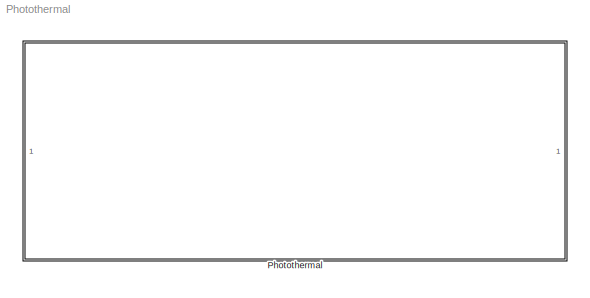
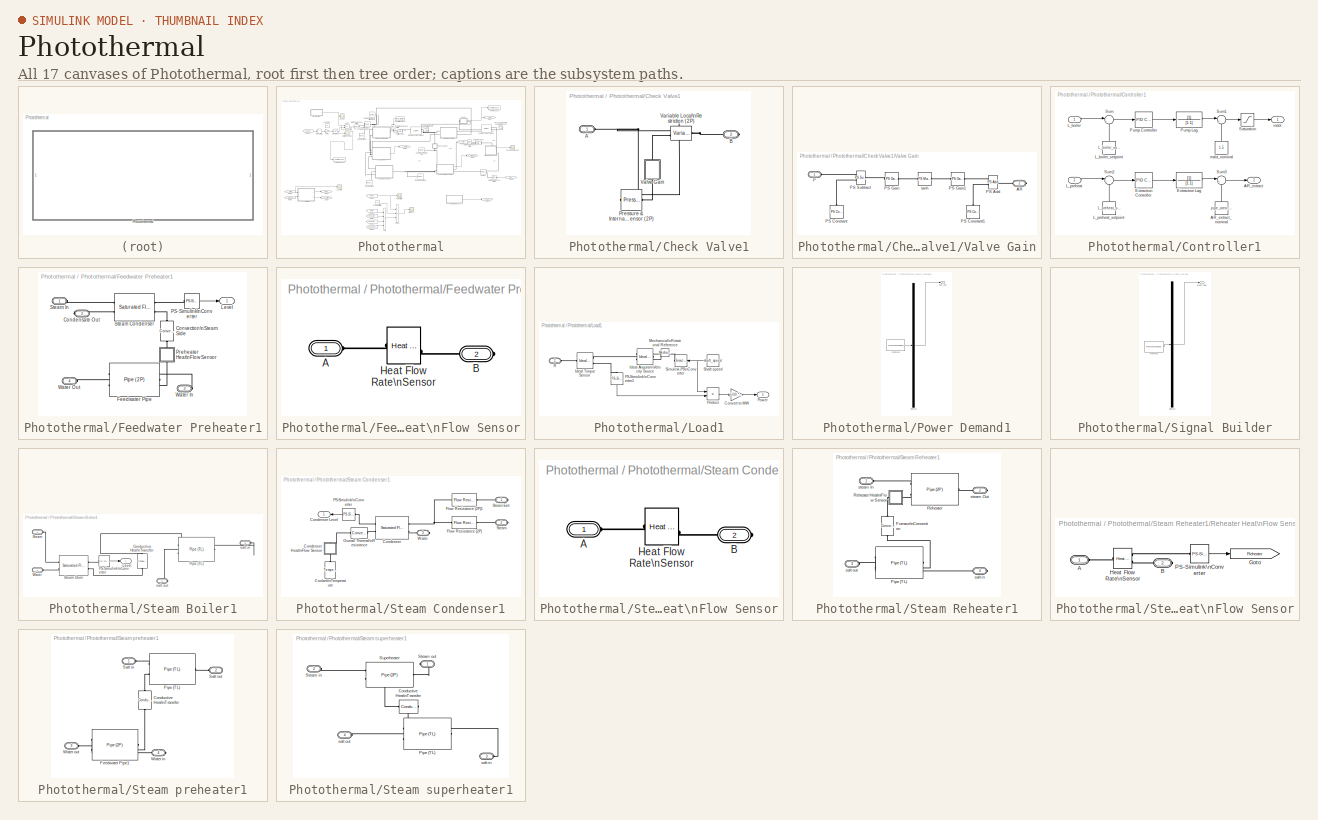
[diagram: thumbnail index - all 17 canvases of the model, root first then tree order]
MODEL Photothermal
KIND model
CONFIG PreLoadFcn = pipe_area = 0.01; % m^2\nfurnace_temperature = 1500; % degC\nboiler_liquid_level = 0.7; % 1\ncondenser_liquid_level = 0.2;\npreheat_condenser_liquid_level = 0.2; % 1\n
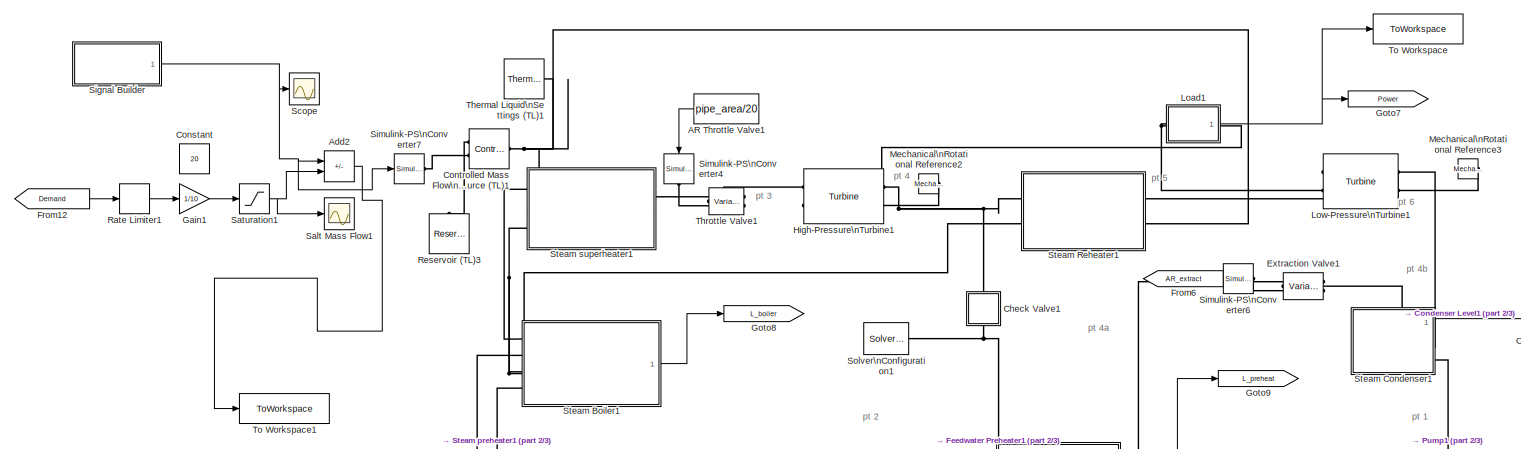
[diagram: Photothermal - part 1/3, full width, top band]
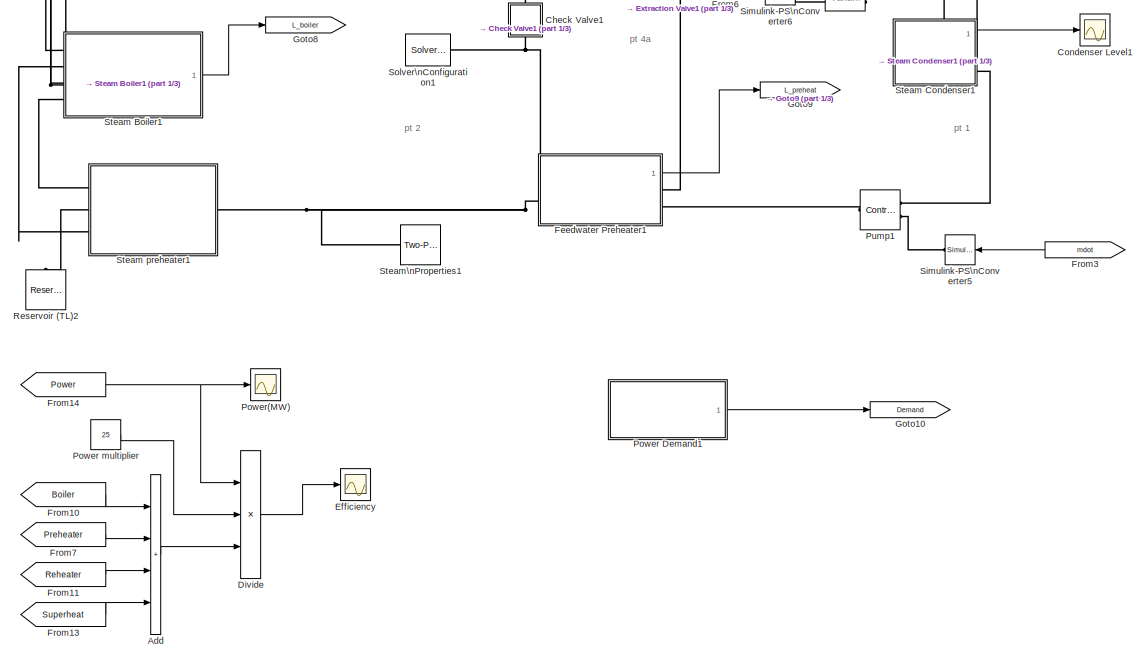
[diagram: Photothermal - part 2/3, middle right region]
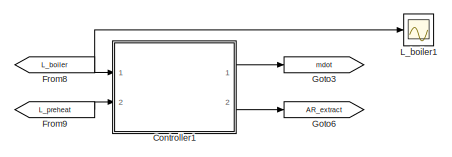
[diagram: Photothermal - part 3/3, bottom left region]
BLOCK [SubSystem] Photothermal
  Ports = []
  RequestExecContextInheritance = off
  SID = 370
BLOCK [Constant] Photothermal/AR Throttle Valve1
  NameLocation = right
  SID = 700
  Value = pipe_area/20
BLOCK [Sum] Photothermal/Add
  IconShape = rectangular
  Inputs = ++++
  Ports = [4, 1]
  SID = 701
BLOCK [Sum] Photothermal/Add2
  IconShape = rectangular
  Inputs = +-
  Ports = [2, 1]
  SID = 702
BLOCK [SubSystem] Photothermal/Check Valve1
  NameLocation = right
  Ports = [0, 0, 0, 0, 0, 1, 1]
  RequestExecContextInheritance = off
  SID = 704
BLOCK [PMIOPort] Photothermal/Check Valve1/A
  SID = 717
  Side = Left
BLOCK [PMIOPort] Photothermal/Check Valve1/B
  Port = 2
  SID = 718
  Side = Right
BLOCK [Reference] Photothermal/Check Valve1/Pressure & Internal\nEnergy Sensor (2P)  REF=fl_lib/Two-Phase Fluid/Sensors/Pressure & Internal\nEnergy Sensor (2P)
  ClassName = pressure_internal_energy_sensor
  ComponentPath = foundation.two_phase_fluid.sensors.pressure_internal_energy_sensor
  ComponentVariantNames = pressure_internal_energy_sensor
  ComponentVariants = foundation.two_phase_fluid.sensors.pressure_internal_energy_sensor
  InternalSimscapePortConfiguration = {\"Bottom\":[],\"Left\":[{\"id\":\"A\",\"label\":\"A\",\"type\":\"foundation.two_phase_fluid.two_phase_fluid\"}],\"Right\":[{\"id\":\"B\",\"label\":\"B\",\"type\":\"foundation.two_phase_fluid.two_phase_fluid\"},{\"id\":\"P\",\"label\":\"P\",\"type\":\"output\"},{\"id\":\"U\",\"label\":\"U\",\"type\":\"output\"}],\"Top\":[]}
  LogSimulationData = off
  Ports = [0, 0, 0, 0, 0, 1, 3]
  SID = 705
  SchemaVersion = 1
  SourceBlock = fl_lib/Two-Phase Fluid/Sensors/Pressure & Internal\nEnergy Sensor (2P)
  SourceFile = foundation.two_phase_fluid.sensors.pressure_internal_energy_sensor
  SourceProductName = Foundation Library
  SourceType = Pressure & Internal\nEnergy Sensor (2P)
BLOCK [SubSystem] Photothermal/Check Valve1/Valve Gain
  NameLocation = right
  Ports = [0, 0, 0, 0, 0, 1, 1]
  RequestExecContextInheritance = off
  SID = 706
BLOCK [PMIOPort] Photothermal/Check Valve1/Valve Gain/AR
  Port = 2
  SID = 715
  Side = Right
BLOCK [PMIOPort] Photothermal/Check Valve1/Valve Gain/P
  SID = 714
  Side = Left
BLOCK [Reference] Photothermal/Check Valve1/Valve Gain/PS Add  REF=fl_lib/Physical Signals/Functions/PS Add
  ClassName = add
  ComponentPath = foundation.signal.functions.add
  ComponentVariantNames = add
  ComponentVariants = foundation.signal.functions.add
  InternalSimscapePortConfiguration = {\"Bottom\":[],\"Left\":[{\"id\":\"I1\",\"label\":\"\",\"type\":\"input\"},{\"id\":\"I2\",\"label\":\"\",\"type\":\"input\"}],\"Right\":[{\"id\":\"O\",\"label\":\"\",\"type\":\"output\"}],\"Top\":[]}
  LogSimulationData = off
  Ports = [0, 0, 0, 0, 0, 2, 1]
  SID = 707
  SchemaVersion = 1
  SourceBlock = fl_lib/Physical Signals/Functions/PS Add
  SourceFile = foundation.signal.functions.add
  SourceProductName = Foundation Library
  SourceType = PS Add
BLOCK [Reference] Photothermal/Check Valve1/Valve Gain/PS Constant  REF=fl_lib/Physical Signals/Sources/PS Constant
  ClassName = constant
  ComponentPath = foundation.signal.sources.constant
  ComponentVariantNames = constant
  ComponentVariants = foundation.signal.sources.constant
  InternalSimscapePortConfiguration = {\"Bottom\":[],\"Left\":[],\"Right\":[{\"id\":\"O\",\"label\":\"\",\"type\":\"output\"}],\"Top\":[]}
  LogSimulationData = off
  NameLocation = right
  Ports = [0, 0, 0, 0, 0, 0, 1]
  SID = 708
  SchemaVersion = 1
  SourceBlock = fl_lib/Physical Signals/Sources/PS Constant
  SourceFile = foundation.signal.sources.constant
  SourceProductName = Foundation Library
  SourceType = PS Constant
  constant = (max_dp + min_dp) / 2
  constant_conf = compiletime
  constant_unit = MPa
BLOCK [Reference] Photothermal/Check Valve1/Valve Gain/PS Constant1  REF=fl_lib/Physical Signals/Sources/PS Constant
  ClassName = constant
  ComponentPath = foundation.signal.sources.constant
  ComponentVariantNames = constant
  ComponentVariants = foundation.signal.sources.constant
  InternalSimscapePortConfiguration = {\"Bottom\":[],\"Left\":[],\"Right\":[{\"id\":\"O\",\"label\":\"\",\"type\":\"output\"}],\"Top\":[]}
  LogSimulationData = off
  NameLocation = right
  Ports = [0, 0, 0, 0, 0, 0, 1]
  SID = 709
  SchemaVersion = 1
  SourceBlock = fl_lib/Physical Signals/Sources/PS Constant
  SourceFile = foundation.signal.sources.constant
  SourceProductName = Foundation Library
  SourceType = PS Constant
  constant = (max_area + min_area) / 2
  constant_conf = compiletime
  constant_unit = m^2
BLOCK [Reference] Photothermal/Check Valve1/Valve Gain/PS Gain  REF=fl_lib/Physical Signals/Functions/PS Gain
  ClassName = gain
  ComponentPath = foundation.signal.functions.gain
  ComponentVariantNames = gain
  ComponentVariants = foundation.signal.functions.gain
  InternalSimscapePortConfiguration = {\"Bottom\":[],\"Left\":[{\"id\":\"I\",\"label\":\"\",\"type\":\"input\"}],\"Right\":[{\"id\":\"O\",\"label\":\"\",\"type\":\"output\"}],\"Top\":[]}
  LogSimulationData = off
  Ports = [0, 0, 0, 0, 0, 1, 1]
  SID = 710
  SchemaVersion = 1
  SourceBlock = fl_lib/Physical Signals/Functions/PS Gain
  SourceFile = foundation.signal.functions.gain
  SourceProductName = Foundation Library
  SourceType = PS Gain
  gain = 6 / (max_dp - min_dp)
  gain_conf = compiletime
  gain_unit = 1/MPa
BLOCK [Reference] Photothermal/Check Valve1/Valve Gain/PS Gain1  REF=fl_lib/Physical Signals/Functions/PS Gain
  ClassName = gain
  ComponentPath = foundation.signal.functions.gain
  ComponentVariantNames = gain
  ComponentVariants = foundation.signal.functions.gain
  InternalSimscapePortConfiguration = {\"Bottom\":[],\"Left\":[{\"id\":\"I\",\"label\":\"\",\"type\":\"input\"}],\"Right\":[{\"id\":\"O\",\"label\":\"\",\"type\":\"output\"}],\"Top\":[]}
  LogSimulationData = off
  Ports = [0, 0, 0, 0, 0, 1, 1]
  SID = 711
  SchemaVersion = 1
  SourceBlock = fl_lib/Physical Signals/Functions/PS Gain
  SourceFile = foundation.signal.functions.gain
  SourceProductName = Foundation Library
  SourceType = PS Gain
  gain = (max_area - min_area) / 2
  gain_conf = compiletime
  gain_unit = m^2
BLOCK [Reference] Photothermal/Check Valve1/Valve Gain/PS Subtract  REF=fl_lib/Physical Signals/Functions/PS Subtract
  ClassName = subtract
  ComponentPath = foundation.signal.functions.subtract
  ComponentVariantNames = subtract
  ComponentVariants = foundation.signal.functions.subtract
  InternalSimscapePortConfiguration = {\"Bottom\":[],\"Left\":[{\"id\":\"I1\",\"label\":\"\",\"type\":\"input\"},{\"id\":\"I2\",\"label\":\"\",\"type\":\"input\"}],\"Right\":[{\"id\":\"O\",\"label\":\"\",\"type\":\"output\"}],\"Top\":[]}
  LogSimulationData = off
  Ports = [0, 0, 0, 0, 0, 2, 1]
  SID = 712
  SchemaVersion = 1
  SourceBlock = fl_lib/Physical Signals/Functions/PS Subtract
  SourceFile = foundation.signal.functions.subtract
  SourceProductName = Foundation Library
  SourceType = PS Subtract
BLOCK [Reference] Photothermal/Check Valve1/Valve Gain/tanh  REF=fl_lib/Physical Signals/Functions/PS Math Function
  ClassName = math_function
  ComponentPath = foundation.signal.functions.math_function
  ComponentVariantNames = math_function
  ComponentVariants = foundation.signal.functions.math_function
  InternalSimscapePortConfiguration = {\"Bottom\":[],\"Left\":[{\"id\":\"I\",\"label\":\"\",\"type\":\"input\"}],\"Right\":[{\"id\":\"O\",\"label\":\"\",\"type\":\"output\"}],\"Top\":[]}
  LogSimulationData = off
  Ports = [0, 0, 0, 0, 0, 1, 1]
  SID = 713
  SchemaVersion = 1
  SourceBlock = fl_lib/Physical Signals/Functions/PS Math Function
  SourceFile = foundation.signal.functions.math_function
  SourceProductName = Foundation Library
  SourceType = PS Math Function
  fcn_choice = 10
  fcn_choice_conf = compiletime
  fcn_choice_unit = 1
  v = 1
  v_conf = compiletime
  v_unit = 1
BLOCK [Reference] Photothermal/Check Valve1/Variable Local\nRestriction (2P)  REF=fl_lib/Two-Phase Fluid/Elements/Variable Local\nRestriction (2P)
  B_lam = 0.999
  B_lam_conf = compiletime
  B_lam_unit = 1
  Cd = Cd
  Cd_conf = compiletime
  Cd_unit = 1
  ClassName = variable_local_restriction
  ComponentPath = foundation.two_phase_fluid.elements.variable_local_restriction
  ComponentVariantNames = variable_local_restriction
  ComponentVariants = foundation.two_phase_fluid.elements.variable_local_restriction
  InternalSimscapePortConfiguration = {\"Bottom\":[],\"Left\":[{\"id\":\"A\",\"label\":\"A\",\"type\":\"foundation.two_phase_fluid.two_phase_fluid\"},{\"id\":\"area_in\",\"label\":\"AR\",\"type\":\"input\"}],\"Right\":[{\"id\":\"B\",\"label\":\"B\",\"type\":\"foundation.two_phase_fluid.two_phase_fluid\"}],\"Top\":[]}  <repeated x3 — deduplicated; at blocks: Variable Local\nRestriction (2P), Extraction Valve1, Throttle Valve1>
  LogSimulationData = off
  Ports = [0, 0, 0, 0, 0, 2, 1]
  SID = 716
  SchemaVersion = 1
  SourceBlock = fl_lib/Two-Phase Fluid/Elements/Variable Local\nRestriction (2P)
  SourceFile = foundation.two_phase_fluid.elements.variable_local_restriction
  SourceProductName = Foundation Library
  SourceType = Variable Local\nRestriction (2P)
  area = pipe_area
  area_conf = compiletime
  area_unit = m^2
  max_area = max_area
  max_area_conf = compiletime
  max_area_unit = m^2
  min_area = min_area
  min_area_conf = compiletime
  min_area_unit = m^2
BLOCK [Scope] Photothermal/Condenser Level1
  Floating = off
  NumInputPorts = 1
  Ports = [1]
  SID = 719
  ScopeSpecificationString = Simulink.scopes.TimeScopeBlockCfg('CurrentConfiguration', extmgr.ConfigurationSet(extmgr.Configuration('Core','General UI',true),extmgr.Configuration('Core','Source UI',true),extmgr.Configuration('Sources','WiredSimulink',true,'DataLoggingVariableName','ScopeData9'),extmgr.Configuration('Visuals','Time Domain',true,'SerializedDisplays',{struct('MinYLimReal','0.1468','MaxYLimReal','0.20591','YLabel...<+1399ch>
BLOCK [Constant] Photothermal/Constant
  SID = 916
  Value = 20
BLOCK [Reference] Photothermal/Controlled Mass Flow\nRate Source (TL)1  REF=fl_lib/Thermal Liquid/Sources/Controlled Mass Flow\nRate Source (TL)
  ClassName = controlled_mass_flow_source
  ComponentPath = foundation.thermal_liquid.sources.controlled_mass_flow_source
  ComponentVariantNames = [\"controlled_mass_flow_source\"]
  ComponentVariants = [\"foundation.thermal_liquid.sources.controlled_mass_flow_source\"]
  InternalSimscapePortConfiguration = {\"Bottom\":[],\"Left\":[{\"id\":\"A\",\"label\":\"A\",\"type\":\"foundation.thermal_liquid.thermal_liquid\"},{\"id\":\"M\",\"label\":\"M\",\"type\":\"input\"}],\"Right\":[{\"id\":\"B\",\"label\":\"B\",\"type\":\"foundation.thermal_liquid.thermal_liquid\"}],\"Top\":[]}
  LogSimulationData = off
  Ports = [0, 0, 0, 0, 0, 2, 1]
  SID = 721
  SchemaVersion = 1
  SourceBlock = fl_lib/Thermal Liquid/Sources/Controlled Mass Flow\nRate Source (TL)
  SourceFile = foundation.thermal_liquid.sources.controlled_mass_flow_source
  SourceProductBaseCode = SS
  SourceType = Controlled Mass Flow\nRate Source (TL)
  area = 0.1
  area_conf = compiletime
  area_unit = m^2
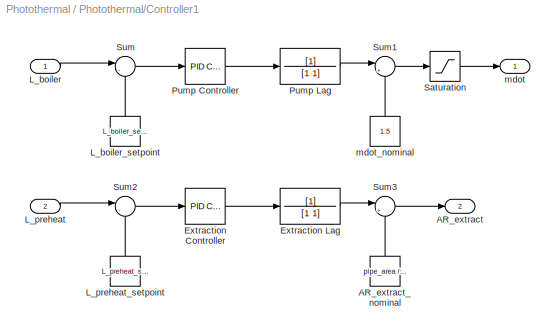
BLOCK [SubSystem] Photothermal/Controller1
  Ports = [2, 2]
  RequestExecContextInheritance = off
  SID = 722
BLOCK [Outport] Photothermal/Controller1/AR_extract
  Port = 2
  SID = 739
  VectorParamsAs1DForOutWhenUnconnected = off
BLOCK [Constant] Photothermal/Controller1/AR_extract_nominal
  NameLocation = right
  SID = 725
  Value = pipe_area / 500
BLOCK [Reference] Photothermal/Controller1/Extraction Controller  REF=pid_lib/PID Controller
  AWVariant = BackCalculation
  AntiWindupMode = back-calculation
  Controller = PI
  ControllerParametersSource = internal
  D = 0
  DGainOutDataTypeStr = Inherit: Inherit via internal rule
  DOutMax = []
  DOutMin = []
  DParamDataTypeStr = Inherit: Inherit via internal rule
  DParamMax = []
  DParamMin = []
  DProdOutDataTypeStr = Inherit: Inherit via internal rule
  DVariant = Disabled
  DerivativeFilterVariant = Disabled
  DifferentiatorICPrevScaledInput = 0
  DifferentiatorOutDataTypeStr = Inherit: Inherit via internal rule
  DifferentiatorOutMax = []
  DifferentiatorOutMin = []
  DivideOutDataTypeStr = Inherit: Inherit via internal rule
  DivideOutMax = []
  DivideOutMin = []
  ExternalReset = none
  ExternalResetVariant = Disabled
  ExternalSaturationOutDataTypeStr = Inherit: Same as second input
  FdbkBlocksVariant = Forward
  FilterContinuousStateAttributes = ''
  FilterDiffDenAccumDataTypeStr = Inherit: Inherit via internal rule
  FilterDiffDenProductOutputDataTypeStr = Inherit: Inherit via internal rule
  FilterDiffNumAccumDataTypeStr = Inherit: Inherit via internal rule
  FilterDiffNumProductOutputDataTypeStr = Inherit: Inherit via internal rule
  FilterDiffOutCoefDataTypeStr = Inherit: Inherit via internal rule
  FilterDiffOutCoefMax = []
  FilterDiffOutCoefMin = []
  FilterICVariant = Disabled
  FilterMethod = Forward Euler
  FilterOutDataTypeStr = Inherit: Inherit via internal rule
  FilterOutMax = []
  FilterOutMin = []
  FilterRTWStateStorageClass = Auto
  FilterStateMustResolveToSignalObject = off
  Form = Ideal
  I = 0.01
  IGainOutDataTypeStr = Inherit: Inherit via internal rule
  IOutMax = []
  IOutMin = []
  IParamDataTypeStr = Inherit: Inherit via internal rule
  IParamMax = []
  IParamMin = []
  IProdOutDataTypeStr = Inherit: Inherit via internal rule
  IVariant = InternalParameters
  IdealPFdbkVariant = Disabled
  IdealPVariant = InternalParameters
  IgnoreLimit = off
  InitialConditionForFilter = 0
  InitialConditionForIntegrator = 0
  InitialConditionSetting = Auto
  InitialConditionSource = internal
  IntegratorContinuousStateAttributes = ''
  IntegratorICVariant = InternalICs
  IntegratorMethod = Forward Euler
  IntegratorOutDataTypeStr = Inherit: Inherit via internal rule
  IntegratorOutMax = []
  IntegratorOutMin = []
  IntegratorRTWStateStorageClass = Auto
  IntegratorStateMustResolveToSignalObject = off
  IntegratorVariant = Continuous
  Kb = 1
  KbOutDataTypeStr = Inherit: Inherit via internal rule
  KbOutMax = []
  KbOutMin = []
  KbParamDataTypeStr = Inherit: Inherit via internal rule
  KbParamMax = []
  KbParamMin = []
  Kt = 1
  KtOutDataTypeStr = Inherit: Inherit via internal rule
  KtOutMax = []
  KtOutMin = []
  KtParamDataTypeStr = Inherit: Inherit via internal rule
  KtParamMax = []
  KtParamMin = []
  LimitOutput = on
  LinearizeAsGain = on
  LockScale = off
  LowerSaturationLimit = - pipe_area / 500
  N = 100
  NCopyVariant = Disabled_SignalSpec
  NGainOutDataTypeStr = Inherit: Inherit via internal rule
  NOutMax = []
  NOutMin = []
  NParamDataTypeStr = Inherit: Inherit via internal rule
  NParamMax = []
  NParamMin = []
  NProdOutDataTypeStr = Inherit: Inherit via internal rule
  NTsProdOutDataTypeStr = Inherit: Inherit via internal rule
  NTsProdOutMax = []
  NTsProdOutMin = []
  NVariant = Disabled
  P = -0.01
  PCopyVariant = Disabled
  PGainOutDataTypeStr = Inherit: Inherit via internal rule
  POutMax = []
  POutMin = []
  PParamDataTypeStr = Inherit: Inherit via internal rule
  PParamMax = []
  PParamMin = []
  PProdOutDataTypeStr = Inherit: Inherit via internal rule
  ParallelPVariant = Passthrough
  Ports = [1, 1]
  RTWMemSecDataConstants = Inherit from model
  RTWMemSecDataInternal = Inherit from model
  RTWMemSecDataParameters = Inherit from model
  RTWMemSecFuncExecute = Inherit from model
  RTWMemSecFuncInitTerm = Inherit from model
  ReciprocalOutDataTypeStr = Inherit: Inherit via internal rule
  ReciprocalOutMax = []
  ReciprocalOutMin = []
  RndMeth = Floor
  SID = 726
  SampleTime = -1
  SatFdbkVariant = Disabled
  SatLimitsSource = internal
  SatVariant = Enabled
  SaturateOnIntegerOverflow = off
  SaturationOutDataTypeStr = Inherit: Same as input
  SaturationOutMax = []
  SaturationOutMin = []
  SourceBlock = pid_lib/PID Controller
  SourceProductBaseCode = SL
  SourceType = PID 1dof
  SumAccumDataTypeStr = Inherit: Inherit via internal rule
  SumDAccumDataTypeStr = Inherit: Inherit via internal rule
  SumDOutDataTypeStr = Inherit: Inherit via internal rule
  SumDOutMax = []
  SumDOutMin = []
  SumDenAccumDataTypeStr = Inherit: Inherit via internal rule
  SumDenOutDataTypeStr = Inherit: Inherit via internal rule
  SumDenOutMax = []
  SumDenOutMin = []
  SumFdbkVariant = Disabled
  SumI1AccumDataTypeStr = Inherit: Inherit via internal rule
  SumI1OutDataTypeStr = Inherit: Inherit via internal rule
  SumI1OutMax = []
  SumI1OutMin = []
  SumI2AccumDataTypeStr = Inherit: Inherit via internal rule
  SumI2OutDataTypeStr = Inherit: Inherit via internal rule
  SumI2OutMax = []
  SumI2OutMin = []
  SumI3AccumDataTypeStr = Inherit: Inherit via internal rule
  SumI3OutDataTypeStr = Inherit: Inherit via internal rule
  SumI3OutMax = []
  SumI3OutMin = []
  SumI4AccumDataTypeStr = Inherit: Inherit via internal rule
  SumI4OutDataTypeStr = Inherit: Inherit via internal rule
  SumI4OutMax = []
  SumI4OutMin = []
  SumNumAccumDataTypeStr = Inherit: Inherit via internal rule
  SumNumOutDataTypeStr = Inherit: Inherit via internal rule
  SumNumOutMax = []
  SumNumOutMin = []
  SumOutDataTypeStr = Inherit: Inherit via internal rule
  SumOutMax = []
  SumOutMin = []
  SumVariant = Sum_PI
  TRSumVariant = Passthrough
  TRVariant = Disabled
  TimeDomain = Continuous-time
  TrackingMode = off
  TsampFilterVariant = InternalTs
  TsampIntegralVariant = Passthrough
  TsampNgainVariant = Passthrough
  TunerSelectOption = Transfer Function Based (PID Tuner App)
  UdiffTsProdOutDataTypeStr = Inherit: Inherit via internal rule
  UdiffTsProdOutMax = []
  UdiffTsProdOutMin = []
  UintegralTsProdOutDataTypeStr = Inherit: Inherit via internal rule
  UintegralTsProdOutMax = []
  UintegralTsProdOutMin = []
  UngainTsProdOutDataTypeStr = Inherit: Inherit via internal rule
  UngainTsProdOutMax = []
  UngainTsProdOutMin = []
  UpperSaturationLimit = pipe_area * (1/10 - 1/500)
  UseExternalTs = off
  UseFilter = on
  ZeroCross = on
BLOCK [TransferFcn] Photothermal/Controller1/Extraction Lag
  Denominator = [1 1]
  SID = 727
BLOCK [Inport] Photothermal/Controller1/L_boiler
  SID = 723
BLOCK [Constant] Photothermal/Controller1/L_boiler_setpoint
  NameLocation = right
  SID = 728
  Value = L_boiler_setpoint
BLOCK [Inport] Photothermal/Controller1/L_preheat
  Port = 2
  SID = 724
BLOCK [Constant] Photothermal/Controller1/L_preheat_setpoint
  NameLocation = right
  SID = 729
  Value = L_preheat_setpoint
BLOCK [Reference] Photothermal/Controller1/Pump Controller  REF=pid_lib/PID Controller
  AWVariant = BackCalculation
  AntiWindupMode = back-calculation
  Controller = PI
  ControllerParametersSource = internal
  D = 0
  DGainOutDataTypeStr = Inherit: Inherit via internal rule
  DOutMax = []
  DOutMin = []
  DParamDataTypeStr = Inherit: Inherit via internal rule
  DParamMax = []
  DParamMin = []
  DProdOutDataTypeStr = Inherit: Inherit via internal rule
  DVariant = Disabled
  DerivativeFilterVariant = Disabled
  DifferentiatorICPrevScaledInput = 0
  DifferentiatorOutDataTypeStr = Inherit: Inherit via internal rule
  DifferentiatorOutMax = []
  DifferentiatorOutMin = []
  DivideOutDataTypeStr = Inherit: Inherit via internal rule
  DivideOutMax = []
  DivideOutMin = []
  ExternalReset = none
  ExternalResetVariant = Disabled
  ExternalSaturationOutDataTypeStr = Inherit: Same as second input
  FdbkBlocksVariant = Forward
  FilterContinuousStateAttributes = ''
  FilterDiffDenAccumDataTypeStr = Inherit: Inherit via internal rule
  FilterDiffDenProductOutputDataTypeStr = Inherit: Inherit via internal rule
  FilterDiffNumAccumDataTypeStr = Inherit: Inherit via internal rule
  FilterDiffNumProductOutputDataTypeStr = Inherit: Inherit via internal rule
  FilterDiffOutCoefDataTypeStr = Inherit: Inherit via internal rule
  FilterDiffOutCoefMax = []
  FilterDiffOutCoefMin = []
  FilterICVariant = Disabled
  FilterMethod = Forward Euler
  FilterOutDataTypeStr = Inherit: Inherit via internal rule
  FilterOutMax = []
  FilterOutMin = []
  FilterRTWStateStorageClass = Auto
  FilterStateMustResolveToSignalObject = off
  Form = Ideal
  I = 1e-4
  IGainOutDataTypeStr = Inherit: Inherit via internal rule
  IOutMax = []
  IOutMin = []
  IParamDataTypeStr = Inherit: Inherit via internal rule
  IParamMax = []
  IParamMin = []
  IProdOutDataTypeStr = Inherit: Inherit via internal rule
  IVariant = InternalParameters
  IdealPFdbkVariant = Disabled
  IdealPVariant = InternalParameters
  IgnoreLimit = off
  InitialConditionForFilter = 0
  InitialConditionForIntegrator = 0
  InitialConditionSetting = Auto
  InitialConditionSource = internal
  IntegratorContinuousStateAttributes = ''
  IntegratorICVariant = InternalICs
  IntegratorMethod = Forward Euler
  IntegratorOutDataTypeStr = Inherit: Inherit via internal rule
  IntegratorOutMax = []
  IntegratorOutMin = []
  IntegratorRTWStateStorageClass = Auto
  IntegratorStateMustResolveToSignalObject = off
  IntegratorVariant = Continuous
  Kb = 1
  KbOutDataTypeStr = Inherit: Inherit via internal rule
  KbOutMax = []
  KbOutMin = []
  KbParamDataTypeStr = Inherit: Inherit via internal rule
  KbParamMax = []
  KbParamMin = []
  Kt = 1
  KtOutDataTypeStr = Inherit: Inherit via internal rule
  KtOutMax = []
  KtOutMin = []
  KtParamDataTypeStr = Inherit: Inherit via internal rule
  KtParamMax = []
  KtParamMin = []
  LimitOutput = on
  LinearizeAsGain = on
  LockScale = off
  LowerSaturationLimit = -1.5
  N = 100
  NCopyVariant = Disabled_SignalSpec
  NGainOutDataTypeStr = Inherit: Inherit via internal rule
  NOutMax = []
  NOutMin = []
  NParamDataTypeStr = Inherit: Inherit via internal rule
  NParamMax = []
  NParamMin = []
  NProdOutDataTypeStr = Inherit: Inherit via internal rule
  NTsProdOutDataTypeStr = Inherit: Inherit via internal rule
  NTsProdOutMax = []
  NTsProdOutMin = []
  NVariant = Disabled
  P = 100
  PCopyVariant = Disabled
  PGainOutDataTypeStr = Inherit: Inherit via internal rule
  POutMax = []
  POutMin = []
  PParamDataTypeStr = Inherit: Inherit via internal rule
  PParamMax = []
  PParamMin = []
  PProdOutDataTypeStr = Inherit: Inherit via internal rule
  ParallelPVariant = Passthrough
  Ports = [1, 1]
  RTWMemSecDataConstants = Inherit from model
  RTWMemSecDataInternal = Inherit from model
  RTWMemSecDataParameters = Inherit from model
  RTWMemSecFuncExecute = Inherit from model
  RTWMemSecFuncInitTerm = Inherit from model
  ReciprocalOutDataTypeStr = Inherit: Inherit via internal rule
  ReciprocalOutMax = []
  ReciprocalOutMin = []
  RndMeth = Floor
  SID = 730
  SampleTime = -1
  SatFdbkVariant = Disabled
  SatLimitsSource = internal
  SatVariant = Enabled
  SaturateOnIntegerOverflow = off
  SaturationOutDataTypeStr = Inherit: Same as input
  SaturationOutMax = []
  SaturationOutMin = []
  SourceBlock = pid_lib/PID Controller
  SourceProductBaseCode = SL
  SourceType = PID 1dof
  SumAccumDataTypeStr = Inherit: Inherit via internal rule
  SumDAccumDataTypeStr = Inherit: Inherit via internal rule
  SumDOutDataTypeStr = Inherit: Inherit via internal rule
  SumDOutMax = []
  SumDOutMin = []
  SumDenAccumDataTypeStr = Inherit: Inherit via internal rule
  SumDenOutDataTypeStr = Inherit: Inherit via internal rule
  SumDenOutMax = []
  SumDenOutMin = []
  SumFdbkVariant = Disabled
  SumI1AccumDataTypeStr = Inherit: Inherit via internal rule
  SumI1OutDataTypeStr = Inherit: Inherit via internal rule
  SumI1OutMax = []
  SumI1OutMin = []
  SumI2AccumDataTypeStr = Inherit: Inherit via internal rule
  SumI2OutDataTypeStr = Inherit: Inherit via internal rule
  SumI2OutMax = []
  SumI2OutMin = []
  SumI3AccumDataTypeStr = Inherit: Inherit via internal rule
  SumI3OutDataTypeStr = Inherit: Inherit via internal rule
  SumI3OutMax = []
  SumI3OutMin = []
  SumI4AccumDataTypeStr = Inherit: Inherit via internal rule
  SumI4OutDataTypeStr = Inherit: Inherit via internal rule
  SumI4OutMax = []
  SumI4OutMin = []
  SumNumAccumDataTypeStr = Inherit: Inherit via internal rule
  SumNumOutDataTypeStr = Inherit: Inherit via internal rule
  SumNumOutMax = []
  SumNumOutMin = []
  SumOutDataTypeStr = Inherit: Inherit via internal rule
  SumOutMax = []
  SumOutMin = []
  SumVariant = Sum_PI
  TRSumVariant = Passthrough
  TRVariant = Disabled
  TimeDomain = Continuous-time
  TrackingMode = off
  TsampFilterVariant = InternalTs
  TsampIntegralVariant = Passthrough
  TsampNgainVariant = Passthrough
  TunerSelectOption = Transfer Function Based (PID Tuner App)
  UdiffTsProdOutDataTypeStr = Inherit: Inherit via internal rule
  UdiffTsProdOutMax = []
  UdiffTsProdOutMin = []
  UintegralTsProdOutDataTypeStr = Inherit: Inherit via internal rule
  UintegralTsProdOutMax = []
  UintegralTsProdOutMin = []
  UngainTsProdOutDataTypeStr = Inherit: Inherit via internal rule
  UngainTsProdOutMax = []
  UngainTsProdOutMin = []
  UpperSaturationLimit = 20
  UseExternalTs = off
  UseFilter = on
  ZeroCross = on
BLOCK [TransferFcn] Photothermal/Controller1/Pump Lag
  Denominator = [1 1]
  SID = 731
BLOCK [Saturate] Photothermal/Controller1/Saturation
  LowerLimit = 0
  SID = 732
  UpperLimit = 30
BLOCK [Sum] Photothermal/Controller1/Sum
  Inputs = |-+
  Ports = [2, 1]
  SID = 733
BLOCK [Sum] Photothermal/Controller1/Sum1
  Inputs = |++
  Ports = [2, 1]
  SID = 734
BLOCK [Sum] Photothermal/Controller1/Sum2
  Inputs = |-+
  Ports = [2, 1]
  SID = 735
BLOCK [Sum] Photothermal/Controller1/Sum3
  Inputs = |++
  Ports = [2, 1]
  SID = 736
BLOCK [Outport] Photothermal/Controller1/mdot
  SID = 738
  VectorParamsAs1DForOutWhenUnconnected = off
BLOCK [Constant] Photothermal/Controller1/mdot_nominal
  NameLocation = right
  SID = 737
  Value = 1.5
BLOCK [Product] Photothermal/Divide
  Inputs = *//
  Ports = [3, 1]
  SID = 740
BLOCK [Scope] Photothermal/Efficiency
  Floating = off
  NumInputPorts = 1
  Ports = [1]
  SID = 741
  ScopeSpecificationString = Simulink.scopes.TimeScopeBlockCfg('CurrentConfiguration', extmgr.ConfigurationSet(extmgr.Configuration('Core','General UI',true),extmgr.Configuration('Core','Source UI',true),extmgr.Configuration('Sources','WiredSimulink',true,'DataLoggingVariableName','ScopeData10'),extmgr.Configuration('Visuals','Time Domain',true,'SerializedDisplays',{struct('MinYLimReal','0','MaxYLimReal','1','YLabelReal','','...<+1392ch>
BLOCK [Reference] Photothermal/Extraction Valve1  REF=fl_lib/Two-Phase Fluid/Elements/Variable Local\nRestriction (2P)
  B_lam = 0.999
  B_lam_conf = compiletime
  B_lam_unit = 1
  Cd = 0.64
  Cd_conf = compiletime
  Cd_unit = 1
  ClassName = variable_local_restriction
  ComponentPath = foundation.two_phase_fluid.elements.variable_local_restriction
  ComponentVariantNames = variable_local_restriction
  ComponentVariants = foundation.two_phase_fluid.elements.variable_local_restriction
  LogSimulationData = off
  Ports = [0, 0, 0, 0, 0, 2, 1]
  SID = 742
  SchemaVersion = 1
  SourceBlock = fl_lib/Two-Phase Fluid/Elements/Variable Local\nRestriction (2P)
  SourceFile = foundation.two_phase_fluid.elements.variable_local_restriction
  SourceProductName = Foundation Library
  SourceType = Variable Local\nRestriction (2P)
  area = pipe_area
  area_conf = compiletime
  area_unit = m^2
  max_area = pipe_area / 10
  max_area_conf = compiletime
  max_area_unit = m^2
  min_area = 1e-10
  min_area_conf = compiletime
  min_area_unit = m^2
BLOCK [SubSystem] Photothermal/Feedwater Preheater1
  Ports = [0, 1, 0, 0, 0, 2, 2]
  RequestExecContextInheritance = off
  SID = 743
  Tag = PublishSubsystem
BLOCK [PMIOPort] Photothermal/Feedwater Preheater1/Condensate Out
  Port = 2
  SID = 753
  Side = Right
BLOCK [Reference] Photothermal/Feedwater Preheater1/Convection\nSteam Side  REF=fl_lib/Thermal/Thermal Elements/Convective Heat\nTransfer
  ClassName = convection
  ComponentPath = foundation.thermal.elements.convection
  ComponentVariantNames = convection
  ComponentVariants = foundation.thermal.elements.convection
  InternalSimscapePortConfiguration = {\"Bottom\":[],\"Left\":[{\"id\":\"A\",\"label\":\"A\",\"type\":\"foundation.thermal.thermal\"}],\"Right\":[{\"id\":\"B\",\"label\":\"B\",\"type\":\"foundation.thermal.thermal\"}],\"Top\":[]}  <repeated x6 — deduplicated; at blocks: Convection\nSteam Side, Conductive Heat\nTransfer, Overall Thermal\nResistance, Furnace\nConvection>
  LogSimulationData = off
  NameLocation = right
  Ports = [0, 0, 0, 0, 0, 1, 1]
  Q = 0
  Q_nominal_specify = off
  Q_nominal_unit = W
  Q_nominal_value = 1
  Q_priority = None
  Q_specify = off
  Q_unit = W
  SID = 744
  SchemaVersion = 1
  SourceBlock = fl_lib/Thermal/Thermal Elements/Convective Heat\nTransfer
  SourceFile = foundation.thermal.elements.convection
  SourceProductName = Foundation Library
  SourceType = Convective Heat\nTransfer
  T = 0
  T_nominal_specify = off
  T_nominal_unit = K
  T_nominal_value = 1
  T_priority = None
  T_specify = off
  T_unit = K
  area = pi * sqrt(4*pipe_area/pi) * pipe_length + fin_area
  area_conf = compiletime
  area_unit = m^2
  heat_tr_coeff = steam_heat_coeff
  heat_tr_coeff_conf = compiletime
  heat_tr_coeff_unit = W/(m^2 * K)
BLOCK [Reference] Photothermal/Feedwater Preheater1/Feedwater Pipe  REF=fl_lib/Two-Phase Fluid/Elements/Pipe (2P)
  ClassName = pipe
  ComponentPath = foundation.two_phase_fluid.elements.pipe
  ComponentVariantNames = pipe
  ComponentVariants = foundation.two_phase_fluid.elements.pipe
  Dh = sqrt(4*pipe_area/pi)
  Dh_conf = compiletime
  Dh_unit = m
  InternalSimscapePortConfiguration = {\"Bottom\":[],\"Left\":[{\"id\":\"A\",\"label\":\"A\",\"type\":\"foundation.two_phase_fluid.two_phase_fluid\"},{\"id\":\"H\",\"label\":\"H\",\"type\":\"foundation.thermal.thermal\"}],\"Right\":[{\"id\":\"B\",\"label\":\"B\",\"type\":\"foundation.two_phase_fluid.two_phase_fluid\"}],\"Top\":[]}  <repeated x4 — deduplicated; at blocks: Feedwater Pipe, Reheater, Feedwater Pipe1, Superheater>
  LogSimulationData = off
  Nu_lam = 3.66
  Nu_lam_conf = compiletime
  Nu_lam_unit = 1
  Ports = [0, 0, 0, 0, 0, 2, 1]
  Re_lam = 2000
  Re_lam_conf = compiletime
  Re_lam_unit = 1
  Re_tur = 4000
  Re_tur_conf = compiletime
  Re_tur_unit = 1
  SID = 745
  SchemaVersion = 1
  SourceBlock = fl_lib/Two-Phase Fluid/Elements/Pipe (2P)
  SourceFile = foundation.two_phase_fluid.elements.pipe
  SourceProductName = Foundation Library
  SourceType = Pipe (2P)
  T_init = T_water_init
  T_init_conf = compiletime
  T_init_unit = degC
  alpha_init = 0.5
  alpha_init_conf = compiletime
  alpha_init_unit = 1
  area = pipe_area
  area_conf = compiletime
  area_unit = m^2
  energy_spec = foundation.enum.energy_spec.temperature
  energy_spec_conf = compiletime
  energy_spec_unit = 1
  h_init = 1500
  h_init_conf = compiletime
  h_init_unit = kJ/kg
  inertia = 0
  inertia_conf = compiletime
  inertia_unit = 1
  length = pipe_length
  length_add = 0.1 * pipe_length
  length_add_conf = compiletime
  length_add_unit = m
  length_conf = compiletime
  length_unit = m
  mdot_init = 0
  mdot_init_conf = compiletime
  mdot_init_unit = kg/s
  p_init = p_water_init
  p_init_conf = compiletime
  p_init_unit = MPa
  roughness = 15e-6
  roughness_conf = compiletime
  roughness_unit = m
  shape_factor = 64
  shape_factor_conf = compiletime
  shape_factor_unit = 1
  time_constant = 0.1
  time_constant_conf = compiletime
  time_constant_unit = s
  u_init = 1500
  u_init_conf = compiletime
  u_init_unit = kJ/kg
  x_init = 0.2
  x_init_conf = compiletime
  x_init_unit = 1
BLOCK [Outport] Photothermal/Feedwater Preheater1/Level
  SID = 756
  VectorParamsAs1DForOutWhenUnconnected = off
BLOCK [Reference] Photothermal/Feedwater Preheater1/PS-Simulink\nConverter  REF=nesl_utility/PS-Simulink\nConverter
  AffineConversion = off
  Frequencies = []
  LeftPortType = input
  PhysicalDomain = network_engine_domain
  Ports = [0, 1, 0, 0, 0, 1]
  PseudoPeriodic = off
  RTWMemSecDataConstants = Inherit from model
  RTWMemSecDataInternal = Inherit from model
  RTWMemSecDataParameters = Inherit from model
  RTWMemSecFuncExecute = Inherit from model
  RTWMemSecFuncInitTerm = Inherit from model
  RightPortType = output
  SID = 746
  SourceBlock = nesl_utility/PS-Simulink\nConverter
  SourceProductName = Utilities
  SourceType = PS-Simulink\nConverter
  SubClassName = ps_output
  Unit = 1
BLOCK [SubSystem] Photothermal/Feedwater Preheater1/Preheater Heat\nFlow Sensor
  NameLocation = right
  Ports = [0, 0, 0, 0, 0, 1, 1]
  RequestExecContextInheritance = off
  SID = 747
BLOCK [PMIOPort] Photothermal/Feedwater Preheater1/Preheater Heat\nFlow Sensor/A
  SID = 749
  Side = Left
BLOCK [PMIOPort] Photothermal/Feedwater Preheater1/Preheater Heat\nFlow Sensor/B
  Port = 2
  SID = 750
  Side = Right
BLOCK [Reference] Photothermal/Feedwater Preheater1/Preheater Heat\nFlow Sensor/Heat Flow Rate\nSensor  REF=fl_lib/Thermal/Thermal Sensors/Heat Flow Rate\nSensor
  ClassName = heat_flow
  ComponentPath = foundation.thermal.sensors.heat_flow
  ComponentVariantNames = heat_flow
  ComponentVariants = foundation.thermal.sensors.heat_flow
  InternalSimscapePortConfiguration = {\"Bottom\":[],\"Left\":[{\"id\":\"A\",\"label\":\"A\",\"type\":\"foundation.thermal.thermal\"}],\"Right\":[{\"id\":\"H\",\"label\":\"H\",\"type\":\"output\"},{\"id\":\"B\",\"label\":\"B\",\"type\":\"foundation.thermal.thermal\"}],\"Top\":[]}  <repeated x3 — deduplicated; at blocks: Heat Flow Rate\nSensor>
  LogSimulationData = off
  Ports = [0, 0, 0, 0, 0, 1, 2]
  SID = 748
  SchemaVersion = 1
  SourceBlock = fl_lib/Thermal/Thermal Sensors/Heat Flow Rate\nSensor
  SourceFile = foundation.thermal.sensors.heat_flow
  SourceProductName = Foundation Library
  SourceType = Heat Flow Rate\nSensor
BLOCK [Reference] Photothermal/Feedwater Preheater1/Steam Condenser  REF=RankineCycle_lib/Saturated Fluid\nChamber
  ClassName = SaturatedFluidChamber
  ComponentPath = RankineCycle.SaturatedFluidChamber
  ComponentVariantNames = SaturatedFluidChamber
  ComponentVariants = RankineCycle.SaturatedFluidChamber
  InternalSimscapePortConfiguration = {\"Bottom\":[],\"Left\":[{\"id\":\"A\",\"label\":\"A\",\"type\":\"foundation.two_phase_fluid.two_phase_fluid\"},{\"id\":\"B\",\"label\":\"B\",\"type\":\"foundation.two_phase_fluid.two_phase_fluid\"}],\"Right\":[{\"id\":\"L_out\",\"label\":\"L\",\"type\":\"output\"},{\"id\":\"H\",\"label\":\"H\",\"type\":\"foundation.thermal.thermal\"}],\"Top\":[]}  <repeated x3 — deduplicated; at blocks: Steam Condenser, Steam Drum, Condenser>
  L = L_init
  L_max = 0.99
  L_max_conf = compiletime
  L_max_unit = 1
  L_min = 0.01
  L_min_conf = compiletime
  L_min_unit = 1
  L_nominal_specify = off
  L_nominal_unit = 1
  L_nominal_value = 1
  L_priority = High
  L_specify = on
  L_unit = 1
  LogSimulationData = off
  Ports = [0, 0, 0, 0, 0, 2, 2]
  SID = 751
  SchemaVersion = 1
  SourceBlock = RankineCycle_lib/Saturated Fluid\nChamber
  SourceFile = RankineCycle.SaturatedFluidChamber
  SourceProductBaseCode = SS
  SourceType = Saturated Fluid\nChamber
  area_A = pipe_area
  area_A_conf = compiletime
  area_A_unit = m^2
  area_B = pipe_area
  area_B_conf = compiletime
  area_B_unit = m^2
  p_I = p_steam_init
  p_I_nominal_specify = off
  p_I_nominal_unit = MPa
  p_I_nominal_value = 1
  p_I_priority = High
  p_I_specify = on
  p_I_unit = MPa
  volume = condenser_volume
  volume_conf = compiletime
  volume_unit = m^3
BLOCK [PMIOPort] Photothermal/Feedwater Preheater1/Steam In
  SID = 752
  Side = Left
BLOCK [PMIOPort] Photothermal/Feedwater Preheater1/Water In
  Port = 3
  SID = 754
  Side = Right
BLOCK [PMIOPort] Photothermal/Feedwater Preheater1/Water Out
  Port = 4
  SID = 755
  Side = Left
BLOCK [From] Photothermal/From10
  GotoTag = Boiler
  SID = 757
BLOCK [From] Photothermal/From11
  GotoTag = Reheater
  SID = 758
  TagVisibility = global
BLOCK [From] Photothermal/From12
  GotoTag = Demand
  SID = 759
  TagVisibility = global
BLOCK [From] Photothermal/From13
  GotoTag = Superheat
  SID = 760
BLOCK [From] Photothermal/From14
  GotoTag = Power
  SID = 761
  TagVisibility = global
BLOCK [From] Photothermal/From3
  GotoTag = mdot
  SID = 762
  TagVisibility = global
BLOCK [From] Photothermal/From6
  GotoTag = AR_extract
  SID = 763
  TagVisibility = global
BLOCK [From] Photothermal/From7
  GotoTag = Preheater
  SID = 764
BLOCK [From] Photothermal/From8
  GotoTag = L_boiler
  SID = 765
  TagVisibility = global
BLOCK [From] Photothermal/From9
  GotoTag = L_preheat
  SID = 766
  TagVisibility = global
BLOCK [Gain] Photothermal/Gain1
  Gain = 1/10
  SID = 767
BLOCK [Goto] Photothermal/Goto10
  GotoTag = Demand
  SID = 768
  TagVisibility = global
BLOCK [Goto] Photothermal/Goto3
  GotoTag = mdot
  SID = 769
  TagVisibility = global
BLOCK [Goto] Photothermal/Goto6
  GotoTag = AR_extract
  SID = 770
  TagVisibility = global
BLOCK [Goto] Photothermal/Goto7
  GotoTag = Power
  SID = 771
  TagVisibility = global
BLOCK [Goto] Photothermal/Goto8
  GotoTag = L_boiler
  SID = 772
  TagVisibility = global
BLOCK [Goto] Photothermal/Goto9
  GotoTag = L_preheat
  SID = 773
  TagVisibility = global
BLOCK [Reference] Photothermal/High-Pressure\nTurbine1  REF=RankineCycle_lib/Turbine
  ClassName = Turbine
  ComponentPath = RankineCycle.Turbine
  ComponentVariantNames = Turbine
  ComponentVariants = RankineCycle.Turbine
  InternalSimscapePortConfiguration = {\"Bottom\":[],\"Left\":[{\"id\":\"A\",\"label\":\"A\",\"type\":\"foundation.two_phase_fluid.two_phase_fluid\"},{\"id\":\"R\",\"label\":\"R\",\"type\":\"foundation.mechanical.rotational.rotational\"}],\"Right\":[{\"id\":\"B\",\"label\":\"B\",\"type\":\"foundation.two_phase_fluid.two_phase_fluid\"},{\"id\":\"C\",\"label\":\"C\",\"type\":\"foundation.mechanical.rotational.rotational\"}],\"Top\":[]}
  LogSimulationData = off
  Ports = [0, 0, 0, 0, 0, 2, 2]
  SID = 774
  SchemaVersion = 1
  SourceBlock = RankineCycle_lib/Turbine
  SourceFile = RankineCycle.Turbine
  SourceProductBaseCode = SS
  SourceType = Turbine
  area_A = pipe_area
  area_A_conf = compiletime
  area_A_unit = m^2
  area_B = pipe_area
  area_B_conf = compiletime
  area_B_unit = m^2
  isentropic_efficiency = 0.9
  isentropic_efficiency_conf = compiletime
  isentropic_efficiency_unit = 1
  mdot_nominal = 1.5
  mdot_nominal_conf = compiletime
  mdot_nominal_unit = kg/s
  mechanical_efficiency = 0.9
  mechanical_efficiency_conf = compiletime
  mechanical_efficiency_unit = 1
  p_A_nominal = 3.5
  p_A_nominal_conf = compiletime
  p_A_nominal_unit = MPa
  p_B_nominal = 1
  p_B_nominal_conf = compiletime
  p_B_nominal_unit = MPa
  v_A_nominal = 0.085
  v_A_nominal_conf = compiletime
  v_A_nominal_unit = m^3/kg
BLOCK [Scope] Photothermal/L_boiler1
  Floating = off
  NumInputPorts = 1
  Ports = [1]
  SID = 775
  ScopeSpecificationString = Simulink.scopes.TimeScopeBlockCfg('CurrentConfiguration', extmgr.ConfigurationSet(extmgr.Configuration('Core','General UI',true),extmgr.Configuration('Core','Source UI',true),extmgr.Configuration('Sources','WiredSimulink',true,'DataLoggingVariableName','ScopeData11'),extmgr.Configuration('Visuals','Time Domain',true,'SerializedDisplays',{struct('MinYLimReal','0.69185','MaxYLimReal','0.71376','YLab...<+1423ch>
BLOCK [SubSystem] Photothermal/Load1
  Ports = [0, 1, 0, 0, 0, 1]
  RequestExecContextInheritance = off
  SID = 776
BLOCK [Gain] Photothermal/Load1/Convert to MW
  Gain = pi/30 * 1e-6
  SID = 777
BLOCK [Reference] Photothermal/Load1/Ideal Angular\nVelocity Source  REF=fl_lib/Mechanical/Mechanical Sources/Ideal Angular\nVelocity Source
  ClassName = angular_velocity
  ComponentPath = foundation.mechanical.sources.angular_velocity
  ComponentVariantNames = angular_velocity
  ComponentVariants = foundation.mechanical.sources.angular_velocity
  InternalSimscapePortConfiguration = {\"Bottom\":[],\"Left\":[{\"id\":\"R\",\"label\":\"R\",\"type\":\"foundation.mechanical.rotational.rotational\"}],\"Right\":[{\"id\":\"S\",\"label\":\"S\",\"type\":\"input\"},{\"id\":\"C\",\"label\":\"C\",\"type\":\"foundation.mechanical.rotational.rotational\"}],\"Top\":[]}
  LogSimulationData = off
  Ports = [0, 0, 0, 0, 0, 1, 2]
  SID = 778
  SchemaVersion = 1
  SourceBlock = fl_lib/Mechanical/Mechanical Sources/Ideal Angular\nVelocity Source
  SourceFile = foundation.mechanical.sources.angular_velocity
  SourceProductName = Foundation Library
  SourceType = Ideal Angular\nVelocity Source
BLOCK [Reference] Photothermal/Load1/Ideal Torque Sensor  REF=fl_lib/Mechanical/Mechanical Sensors/Ideal Torque Sensor
  ClassName = torque
  ComponentPath = foundation.mechanical.sensors.torque
  ComponentVariantNames = torque
  ComponentVariants = foundation.mechanical.sensors.torque
  InternalSimscapePortConfiguration = {\"Bottom\":[],\"Left\":[{\"id\":\"R\",\"label\":\"R\",\"type\":\"foundation.mechanical.rotational.rotational\"}],\"Right\":[{\"id\":\"C\",\"label\":\"C\",\"type\":\"foundation.mechanical.rotational.rotational\"},{\"id\":\"T\",\"label\":\"T\",\"type\":\"output\"}],\"Top\":[]}
  LogSimulationData = off
  Ports = [0, 0, 0, 0, 0, 1, 2]
  SID = 779
  SchemaVersion = 1
  SourceBlock = fl_lib/Mechanical/Mechanical Sensors/Ideal Torque Sensor
  SourceFile = foundation.mechanical.sensors.torque
  SourceProductName = Foundation Library
  SourceType = Ideal Torque Sensor
BLOCK [Reference] Photothermal/Load1/Mechanical\nRotational Reference  REF=fl_lib/Mechanical/Rotational Elements/Mechanical\nRotational Reference
  ClassName = reference
  ComponentPath = foundation.mechanical.rotational.reference
  ComponentVariantNames = reference
  ComponentVariants = foundation.mechanical.rotational.reference
  InternalSimscapePortConfiguration = {\"Bottom\":[],\"Left\":[{\"id\":\"W\",\"label\":\"\",\"type\":\"foundation.mechanical.rotational.rotational\"}],\"Right\":[],\"Top\":[]}
  LogSimulationData = off
  Ports = [0, 0, 0, 0, 0, 1]
  SID = 780
  SchemaVersion = 1
  SourceBlock = fl_lib/Mechanical/Rotational Elements/Mechanical\nRotational Reference
  SourceFile = foundation.mechanical.rotational.reference
  SourceProductName = Foundation Library
  SourceType = Mechanical\nRotational Reference
BLOCK [Reference] Photothermal/Load1/PS-Simulink\nConverter1  REF=nesl_utility/PS-Simulink\nConverter
  AffineConversion = off
  Frequencies = []
  LeftPortType = input
  NameLocation = left
  PhysicalDomain = network_engine_domain
  Ports = [0, 1, 0, 0, 0, 1]
  PseudoPeriodic = off
  RTWMemSecDataConstants = Inherit from model
  RTWMemSecDataInternal = Inherit from model
  RTWMemSecDataParameters = Inherit from model
  RTWMemSecFuncExecute = Inherit from model
  RTWMemSecFuncInitTerm = Inherit from model
  RightPortType = output
  SID = 781
  SourceBlock = nesl_utility/PS-Simulink\nConverter
  SourceProductName = Utilities
  SourceType = PS-Simulink\nConverter
  SubClassName = ps_output
  Unit = N*m
BLOCK [Outport] Photothermal/Load1/Power
  SID = 786
  VectorParamsAs1DForOutWhenUnconnected = off
BLOCK [Product] Photothermal/Load1/Product
  Ports = [2, 1]
  SID = 782
BLOCK [PMIOPort] Photothermal/Load1/R
  SID = 785
  Side = Left
BLOCK [Constant] Photothermal/Load1/Shaft speed
  SID = 783
  Value = shaft_speed
BLOCK [Reference] Photothermal/Load1/Simulink-PS\nConverter  REF=nesl_utility/Simulink-PS\nConverter
  AffineConversion = off
  FilteringAndDerivatives = provide
  Frequencies = []
  InputFilterTimeConstant = 0.001
  LeftPortType = input
  NoiseDistribution = none
  NoiseParameters = []
  PhysicalDomain = network_engine_domain
  Ports = [1, 0, 0, 0, 0, 0, 1]
  PseudoPeriodic = off
  RTWMemSecDataConstants = Inherit from model
  RTWMemSecDataInternal = Inherit from model
  RTWMemSecDataParameters = Inherit from model
  RTWMemSecFuncExecute = Inherit from model
  RTWMemSecFuncInitTerm = Inherit from model
  RightPortType = output
  SID = 784
  SimscapeFilterOrder = 1
  SourceBlock = nesl_utility/Simulink-PS\nConverter
  SourceProductName = Utilities
  SourceType = Simulink-PS\nConverter
  SubClassName = ps_input
  UdotUserProvided = 0
  Unit = rpm
BLOCK [Reference] Photothermal/Low-Pressure\nTurbine1  REF=RankineCycle_lib/Turbine
  ClassName = Turbine
  ComponentPath = RankineCycle.Turbine
  ComponentVariantNames = Turbine
  ComponentVariants = RankineCycle.Turbine
  InternalSimscapePortConfiguration = {\"Bottom\":[],\"Left\":[{\"id\":\"A\",\"label\":\"A\",\"type\":\"foundation.two_phase_fluid.two_phase_fluid\"},{\"id\":\"R\",\"label\":\"R\",\"type\":\"foundation.mechanical.rotational.rotational\"}],\"Right\":[{\"id\":\"B\",\"label\":\"B\",\"type\":\"foundation.two_phase_fluid.two_phase_fluid\"},{\"id\":\"C\",\"label\":\"C\",\"type\":\"foundation.mechanical.rotational.rotational\"}],\"Top\":[]}
  LogSimulationData = off
  Ports = [0, 0, 0, 0, 0, 2, 2]
  SID = 787
  SchemaVersion = 1
  SourceBlock = RankineCycle_lib/Turbine
  SourceFile = RankineCycle.Turbine
  SourceProductBaseCode = SS
  SourceType = Turbine
  area_A = pipe_area
  area_A_conf = compiletime
  area_A_unit = m^2
  area_B = pipe_area * 2
  area_B_conf = compiletime
  area_B_unit = m^2
  isentropic_efficiency = 0.9
  isentropic_efficiency_conf = compiletime
  isentropic_efficiency_unit = 1
  mdot_nominal = 1.5
  mdot_nominal_conf = compiletime
  mdot_nominal_unit = kg/s
  mechanical_efficiency = 0.9
  mechanical_efficiency_conf = compiletime
  mechanical_efficiency_unit = 1
  p_A_nominal = 1
  p_A_nominal_conf = compiletime
  p_A_nominal_unit = MPa
  p_B_nominal = 0.05
  p_B_nominal_conf = compiletime
  p_B_nominal_unit = MPa
  v_A_nominal = 0.3
  v_A_nominal_conf = compiletime
  v_A_nominal_unit = m^3/kg
BLOCK [Reference] Photothermal/Mechanical\nRotational Reference2  REF=fl_lib/Mechanical/Rotational Elements/Mechanical\nRotational Reference
  ClassName = reference
  ComponentPath = foundation.mechanical.rotational.reference
  ComponentVariantNames = reference
  ComponentVariants = foundation.mechanical.rotational.reference
  InternalSimscapePortConfiguration = {\"Bottom\":[],\"Left\":[{\"id\":\"W\",\"label\":\"\",\"type\":\"foundation.mechanical.rotational.rotational\"}],\"Right\":[],\"Top\":[]}
  LogSimulationData = off
  NameLocation = top
  Ports = [0, 0, 0, 0, 0, 1]
  SID = 788
  SchemaVersion = 1
  SourceBlock = fl_lib/Mechanical/Rotational Elements/Mechanical\nRotational Reference
  SourceFile = foundation.mechanical.rotational.reference
  SourceProductName = Foundation Library
  SourceType = Mechanical\nRotational Reference
BLOCK [Reference] Photothermal/Mechanical\nRotational Reference3  REF=fl_lib/Mechanical/Rotational Elements/Mechanical\nRotational Reference
  ClassName = reference
  ComponentPath = foundation.mechanical.rotational.reference
  ComponentVariantNames = reference
  ComponentVariants = foundation.mechanical.rotational.reference
  InternalSimscapePortConfiguration = {\"Bottom\":[],\"Left\":[{\"id\":\"W\",\"label\":\"\",\"type\":\"foundation.mechanical.rotational.rotational\"}],\"Right\":[],\"Top\":[]}
  LogSimulationData = off
  NameLocation = top
  Ports = [0, 0, 0, 0, 0, 1]
  SID = 789
  SchemaVersion = 1
  SourceBlock = fl_lib/Mechanical/Rotational Elements/Mechanical\nRotational Reference
  SourceFile = foundation.mechanical.rotational.reference
  SourceProductName = Foundation Library
  SourceType = Mechanical\nRotational Reference
BLOCK [SubSystem] Photothermal/Power Demand1
  ClipboardFcn = sigbuilder_block('clipboard');
  CloseFcn = sigbuilder_block('close');
  ContinueFcn = sigbuilder_block('continue');
  CopyFcn = sigbuilder_block('copy');
  DeleteFcn = sigbuilder_block('delete');
  LoadFcn = sigbuilder_block('load');
  MaskHideContents = on
  ModelCloseFcn = sigbuilder_block('modelClose');
  NameChangeFcn = sigbuilder_block('namechange');
  OpenFcn = sigbuilder_block('open',[129 190.2 550.8 320.4 ]);
  PauseFcn = sigbuilder_block('pause');
  Ports = [0, 1]
  PreSaveFcn = sigbuilder_block('preSave');
  RequestExecContextInheritance = off
  SID = 790
  StartFcn = sigbuilder_block('start');
  StopFcn = sigbuilder_block('stop');
  Tag = STV Subsys
BLOCK [Outport] Photothermal/Power Demand1/DNI_Avg
  SID = 790:3
  Tag = STV Outport
  VectorParamsAs1DForOutWhenUnconnected = off
BLOCK [Demux] Photothermal/Power Demand1/Demux
  DisplayOption = none
  Outputs = 1
  Ports = [1, 1]
  SID = 790:1
  Tag = STV Demux
BLOCK [FromWorkspace] Photothermal/Power Demand1/FromWs
  SID = 790:2
  SigBuilderData = DataTag0
  Tag = STV FromWs
  VariableName = tuvar
  VnvData = DataTag1
  ZeroCross = off
BLOCK [Constant] Photothermal/Power multiplier
  SID = 791
  Value = 25
BLOCK [Scope] Photothermal/Power(MW)
  Floating = off
  NumInputPorts = 1
  Ports = [1]
  SID = 792
  ScopeSpecificationString = Simulink.scopes.TimeScopeBlockCfg('CurrentConfiguration', extmgr.ConfigurationSet(extmgr.Configuration('Core','General UI',true),extmgr.Configuration('Core','Source UI',true),extmgr.Configuration('Sources','WiredSimulink',true,'DataLoggingVariableName','ScopeData5'),extmgr.Configuration('Visuals','Time Domain',true,'SerializedDisplays',{struct('MinYLimReal','-0.08589','MaxYLimReal','1.08364','YLab...<+1401ch>
BLOCK [Reference] Photothermal/Pump1  REF=fl_lib/Two-Phase Fluid/Sources/Controlled Mass Flow\nRate Source (2P)
  ClassName = controlled_mass_flow_source
  ComponentPath = foundation.two_phase_fluid.sources.controlled_mass_flow_source
  ComponentVariantNames = controlled_mass_flow_source
  ComponentVariants = foundation.two_phase_fluid.sources.controlled_mass_flow_source
  InternalSimscapePortConfiguration = {\"Bottom\":[],\"Left\":[{\"id\":\"A\",\"label\":\"A\",\"type\":\"foundation.two_phase_fluid.two_phase_fluid\"},{\"id\":\"M\",\"label\":\"M\",\"type\":\"input\"}],\"Right\":[{\"id\":\"B\",\"label\":\"B\",\"type\":\"foundation.two_phase_fluid.two_phase_fluid\"}],\"Top\":[]}
  LogSimulationData = off
  Ports = [0, 0, 0, 0, 0, 2, 1]
  SID = 794
  SchemaVersion = 1
  SourceBlock = fl_lib/Two-Phase Fluid/Sources/Controlled Mass Flow\nRate Source (2P)
  SourceFile = foundation.two_phase_fluid.sources.controlled_mass_flow_source
  SourceProductName = Foundation Library
  SourceType = Controlled Mass Flow\nRate Source (2P)
  area_A = pipe_area
  area_A_conf = compiletime
  area_A_unit = m^2
  area_B = pipe_area
  area_B_conf = compiletime
  area_B_unit = m^2
  power_spec = 1
  power_spec_conf = compiletime
  power_spec_unit = 1
BLOCK [RateLimiter] Photothermal/Rate Limiter1
  FallingSlewLimit = -0.5
  RisingSlewLimit = 0.5
  SID = 795
  SampleTimeMode = inherited
BLOCK [Reference] Photothermal/Reservoir (TL)2  REF=fl_lib/Thermal Liquid/Elements/Reservoir (TL)
  ClassName = reservoir
  ComponentPath = foundation.thermal_liquid.elements.reservoir
  ComponentVariantNames = [\"reservoir\"]
  ComponentVariants = [\"foundation.thermal_liquid.elements.reservoir\"]
  InternalSimscapePortConfiguration = {\"Bottom\":[],\"Left\":[{\"id\":\"A\",\"label\":\"A\",\"type\":\"foundation.thermal_liquid.thermal_liquid\"}],\"Right\":[],\"Top\":[]}
  LogSimulationData = off
  NameLocation = right
  Ports = [0, 0, 0, 0, 0, 1]
  SID = 796
  SchemaVersion = 1
  SourceBlock = fl_lib/Thermal Liquid/Elements/Reservoir (TL)
  SourceFile = foundation.thermal_liquid.elements.reservoir
  SourceProductBaseCode = SS
  SourceType = Reservoir (TL)
  area = 0.01
  area_conf = compiletime
  area_unit = m^2
  pressure_spec = foundation.enum.pressure_spec.atmospheric
  pressure_spec_conf = compiletime
  pressure_spec_unit = 1
  reservoir_pressure = 0.101325
  reservoir_pressure_conf = compiletime
  reservoir_pressure_unit = MPa
  reservoir_temperature = 500
  reservoir_temperature_conf = compiletime
  reservoir_temperature_unit = degC
BLOCK [Reference] Photothermal/Reservoir (TL)3  REF=fl_lib/Thermal Liquid/Elements/Reservoir (TL)
  ClassName = reservoir
  ComponentPath = foundation.thermal_liquid.elements.reservoir
  ComponentVariantNames = [\"reservoir\"]
  ComponentVariants = [\"foundation.thermal_liquid.elements.reservoir\"]
  InternalSimscapePortConfiguration = {\"Bottom\":[],\"Left\":[{\"id\":\"A\",\"label\":\"A\",\"type\":\"foundation.thermal_liquid.thermal_liquid\"}],\"Right\":[],\"Top\":[]}
  LogSimulationData = off
  NameLocation = right
  Ports = [0, 0, 0, 0, 0, 1]
  SID = 797
  SchemaVersion = 1
  SourceBlock = fl_lib/Thermal Liquid/Elements/Reservoir (TL)
  SourceFile = foundation.thermal_liquid.elements.reservoir
  SourceProductBaseCode = SS
  SourceType = Reservoir (TL)
  area = 0.1
  area_conf = compiletime
  area_unit = m^2
  pressure_spec = foundation.enum.pressure_spec.atmospheric
  pressure_spec_conf = compiletime
  pressure_spec_unit = 1
  reservoir_pressure = 0.101325
  reservoir_pressure_conf = compiletime
  reservoir_pressure_unit = MPa
  reservoir_temperature = 540
  reservoir_temperature_conf = compiletime
  reservoir_temperature_unit = degC
BLOCK [Scope] Photothermal/Salt Mass Flow1
  Floating = off
  NumInputPorts = 1
  Ports = [1]
  SID = 799
  ScopeSpecificationString = Simulink.scopes.TimeScopeBlockCfg('CurrentConfiguration', extmgr.ConfigurationSet(extmgr.Configuration('Core','General UI',true),extmgr.Configuration('Core','Source UI',true),extmgr.Configuration('Sources','WiredSimulink',true,'DataLoggingVariableName','ScopeData7'),extmgr.Configuration('Visuals','Time Domain',true,'SerializedDisplays',{struct('MinYLimReal','-9.27761','MaxYLimReal','83.49851','YLa...<+1416ch>
BLOCK [Saturate] Photothermal/Saturation1
  LowerLimit = 0
  SID = 800
  UpperLimit = 100
BLOCK [Scope] Photothermal/Scope
  Floating = off
  NumInputPorts = 1
  Ports = [1]
  SID = 891
  ScopeSpecificationString = Simulink.scopes.TimeScopeBlockCfg('CurrentConfiguration', extmgr.ConfigurationSet(extmgr.Configuration('Core','General UI',true),extmgr.Configuration('Core','Source UI',true),extmgr.Configuration('Sources','WiredSimulink',true),extmgr.Configuration('Visuals','Time Domain',true,'SerializedDisplays',{struct('MinYLimReal','-2.5','MaxYLimReal','22.5','YLabelReal','','MinYLimMag','0.00000','MaxYLimMag'...<+1382ch>
BLOCK [SubSystem] Photothermal/Signal Builder
  ClipboardFcn = sigbuilder_block('clipboard');
  CloseFcn = sigbuilder_block('close');
  ContinueFcn = sigbuilder_block('continue');
  CopyFcn = sigbuilder_block('copy');
  DeleteFcn = sigbuilder_block('delete');
  LoadFcn = sigbuilder_block('load',[437.6 199.2 550.4 400 ]);
  MaskHideContents = on
  ModelCloseFcn = sigbuilder_block('modelClose');
  NameChangeFcn = sigbuilder_block('namechange');
  OpenFcn = sigbuilder_block('open',[437.6 199.2 550.4 400 ]);
  PauseFcn = sigbuilder_block('pause');
  Ports = [0, 1]
  PreSaveFcn = sigbuilder_block('preSave');
  RequestExecContextInheritance = off
  SID = 917
  StartFcn = sigbuilder_block('start');
  StopFcn = sigbuilder_block('stop');
  Tag = STV Subsys
BLOCK [Demux] Photothermal/Signal Builder/Demux
  DisplayOption = none
  Outputs = 1
  Ports = [1, 1]
  SID = 917:1
  Tag = STV Demux
BLOCK [FromWorkspace] Photothermal/Signal Builder/FromWs
  SID = 917:2
  SigBuilderData = DataTag2
  Tag = STV FromWs
  VariableName = tuvar
  VnvData = DataTag3
BLOCK [Outport] Photothermal/Signal Builder/mass flow
  SID = 917:3
  Tag = STV Outport
BLOCK [Reference] Photothermal/Simulink-PS\nConverter4  REF=nesl_utility/Simulink-PS\nConverter
  AffineConversion = off
  FilteringAndDerivatives = provide
  Frequencies = []
  InputFilterTimeConstant = 0.001
  LeftPortType = input
  NameLocation = left
  NoiseDistribution = none
  NoiseParameters = []
  PhysicalDomain = network_engine_domain
  Ports = [1, 0, 0, 0, 0, 0, 1]
  PseudoPeriodic = off
  RTWMemSecDataConstants = Inherit from model
  RTWMemSecDataInternal = Inherit from model
  RTWMemSecDataParameters = Inherit from model
  RTWMemSecFuncExecute = Inherit from model
  RTWMemSecFuncInitTerm = Inherit from model
  RightPortType = output
  SID = 801
  SimscapeFilterOrder = 1
  SourceBlock = nesl_utility/Simulink-PS\nConverter
  SourceProductName = Utilities
  SourceType = Simulink-PS\nConverter
  SubClassName = ps_input
  UdotUserProvided = 0
  Unit = m^2
BLOCK [Reference] Photothermal/Simulink-PS\nConverter5  REF=nesl_utility/Simulink-PS\nConverter
  AffineConversion = off
  FilteringAndDerivatives = provide
  Frequencies = []
  InputFilterTimeConstant = 0.001
  LeftPortType = input
  NoiseDistribution = none
  NoiseParameters = []
  PhysicalDomain = network_engine_domain
  Ports = [1, 0, 0, 0, 0, 0, 1]
  PseudoPeriodic = off
  RTWMemSecDataConstants = Inherit from model
  RTWMemSecDataInternal = Inherit from model
  RTWMemSecDataParameters = Inherit from model
  RTWMemSecFuncExecute = Inherit from model
  RTWMemSecFuncInitTerm = Inherit from model
  RightPortType = output
  SID = 802
  SimscapeFilterOrder = 1
  SourceBlock = nesl_utility/Simulink-PS\nConverter
  SourceProductName = Utilities
  SourceType = Simulink-PS\nConverter
  SubClassName = ps_input
  UdotUserProvided = 0
  Unit = kg/s
BLOCK [Reference] Photothermal/Simulink-PS\nConverter6  REF=nesl_utility/Simulink-PS\nConverter
  AffineConversion = off
  FilteringAndDerivatives = provide
  Frequencies = []
  InputFilterTimeConstant = 0.001
  LeftPortType = input
  NoiseDistribution = none
  NoiseParameters = []
  PhysicalDomain = network_engine_domain
  Ports = [1, 0, 0, 0, 0, 0, 1]
  PseudoPeriodic = off
  RTWMemSecDataConstants = Inherit from model
  RTWMemSecDataInternal = Inherit from model
  RTWMemSecDataParameters = Inherit from model
  RTWMemSecFuncExecute = Inherit from model
  RTWMemSecFuncInitTerm = Inherit from model
  RightPortType = output
  SID = 803
  SimscapeFilterOrder = 1
  SourceBlock = nesl_utility/Simulink-PS\nConverter
  SourceProductName = Utilities
  SourceType = Simulink-PS\nConverter
  SubClassName = ps_input
  UdotUserProvided = 0
  Unit = m^2
BLOCK [Reference] Photothermal/Simulink-PS\nConverter7  REF=nesl_utility/Simulink-PS\nConverter
  AffineConversion = off
  FilteringAndDerivatives = provide
  Frequencies = []
  InputFilterTimeConstant = 0.001
  LeftPortType = input
  NoiseDistribution = none
  NoiseParameters = []
  PhysicalDomain = network_engine_domain
  Ports = [1, 0, 0, 0, 0, 0, 1]
  PseudoPeriodic = off
  RTWMemSecDataConstants = Inherit from model
  RTWMemSecDataInternal = Inherit from model
  RTWMemSecDataParameters = Inherit from model
  RTWMemSecFuncExecute = Inherit from model
  RTWMemSecFuncInitTerm = Inherit from model
  RightPortType = output
  SID = 804
  SimscapeFilterOrder = 1
  SourceBlock = nesl_utility/Simulink-PS\nConverter
  SourceProductName = Utilities
  SourceType = Simulink-PS\nConverter
  SubClassName = ps_input
  UdotUserProvided = 0
  Unit = kg/s
BLOCK [Reference] Photothermal/Solver\nConfiguration1  REF=nesl_utility/Solver\nConfiguration
  AbsTol = 1e-06
  AutomaticFiltering = on
  ComputeImpulses = off
  DelaysMemoryBudget = 1024
  DoDC = off
  DoFixedCost = off
  EnableSwitchedLinearOptims = on
  EquationFormulation = NE_TIME_EF
  FilteringTimeConstant = 0.001
  FrequencyDomain = off
  Harmonics = []
  ImpulseIterations = 2
  LeftPortType = input
  LinearAlgebra = auto
  LocalSolverChoice = NE_BACKWARD_EULER_ADVANCER
  LocalSolverSampleTime = 0.001
  MaxModeIter = 2
  MaxNonlinIter = 3
  MinStep = 1e-09
  NumHomotopyIterations = 100
  PartitionMemoryBudget = 1024
  PartitionMethod = FAST
  PartitionStorageMethod = AS_NEEDED
  PhasorMode = off
  PhasorModeNumHarmonics = 1
  PhysicalDomain = network_engine_domain
  Ports = [0, 0, 0, 0, 0, 0, 1]
  Profile = off
  RTWMemSecDataConstants = Inherit from model
  RTWMemSecDataInternal = Inherit from model
  RTWMemSecDataParameters = Inherit from model
  RTWMemSecFuncExecute = Inherit from model
  RTWMemSecFuncInitTerm = Inherit from model
  RelTol = 0.001
  ResidualTolerance = 1e-9
  RevertToSquareIcSolve = off
  RightPortType = generic
  SID = 805
  SimulateNoise = off
  SourceBlock = nesl_utility/Solver\nConfiguration
  SourceProductName = Utilities
  SourceType = Solver\nConfiguration
  SubClassName = solver
  ToWorkspace = off
  Tones = []
  UseCCode = off
  UseLocalSampling = off
  UseLocalSolver = off
BLOCK [SubSystem] Photothermal/Steam Boiler1
  Ports = [0, 1, 0, 0, 0, 4]
  RequestExecContextInheritance = off
  SID = 807
  Tag = PublishSubsystem
BLOCK [Reference] Photothermal/Steam Boiler1/Conductive Heat\nTransfer  REF=fl_lib/Thermal/Thermal Elements/Conductive Heat\nTransfer
  ClassName = conduction
  ComponentPath = foundation.thermal.elements.conduction
  ComponentVariantNames = [\"conduction\"]
  ComponentVariants = [\"foundation.thermal.elements.conduction\"]
  LogSimulationData = off
  NameLocation = left
  Ports = [0, 0, 0, 0, 0, 1, 1]
  Q = 0
  Q_nominal_specify = off
  Q_nominal_unit = W
  Q_nominal_value = 1
  Q_priority = None
  Q_specify = off
  Q_unit = W
  SID = 808
  SchemaVersion = 1
  SourceBlock = fl_lib/Thermal/Thermal Elements/Conductive Heat\nTransfer
  SourceFile = foundation.thermal.elements.conduction
  SourceProductBaseCode = SS
  SourceType = Conductive Heat\nTransfer
  T = 0
  T_nominal_specify = off
  T_nominal_unit = K
  T_nominal_value = 1
  T_priority = None
  T_specify = off
  T_unit = K
  area = 1
  area_conf = compiletime
  area_unit = m^2
  th_cond = 1000
  th_cond_conf = compiletime
  th_cond_unit = W/(m*K)
  thickness = 0.1
  thickness_conf = compiletime
  thickness_unit = m
BLOCK [Outport] Photothermal/Steam Boiler1/Level
  SID = 816
  VectorParamsAs1DForOutWhenUnconnected = off
BLOCK [Reference] Photothermal/Steam Boiler1/PS-Simulink\nConverter  REF=nesl_utility/PS-Simulink\nConverter
  AffineConversion = off
  Frequencies = []
  LeftPortType = input
  PhysicalDomain = network_engine_domain
  Ports = [0, 1, 0, 0, 0, 1]
  PseudoPeriodic = off
  RTWMemSecDataConstants = Inherit from model
  RTWMemSecDataInternal = Inherit from model
  RTWMemSecDataParameters = Inherit from model
  RTWMemSecFuncExecute = Inherit from model
  RTWMemSecFuncInitTerm = Inherit from model
  RightPortType = output
  SID = 809
  SourceBlock = nesl_utility/PS-Simulink\nConverter
  SourceProductName = Utilities
  SourceType = PS-Simulink\nConverter
  SubClassName = ps_output
  Unit = 1
BLOCK [Reference] Photothermal/Steam Boiler1/Pipe (TL)  REF=fl_lib/Thermal Liquid/Elements/Pipe (TL)
  ClassName = pipe
  ComponentPath = foundation.thermal_liquid.elements.pipe
  ComponentVariantNames = [\"pipe\"]
  ComponentVariants = [\"foundation.thermal_liquid.elements.pipe\"]
  Dh = 0.1128
  Dh_conf = compiletime
  Dh_unit = m
  InternalSimscapePortConfiguration = {\"Bottom\":[],\"Left\":[{\"id\":\"A\",\"label\":\"A\",\"type\":\"foundation.thermal_liquid.thermal_liquid\"},{\"id\":\"H\",\"label\":\"H\",\"type\":\"foundation.thermal.thermal\"}],\"Right\":[{\"id\":\"B\",\"label\":\"B\",\"type\":\"foundation.thermal_liquid.thermal_liquid\"}],\"Top\":[]}  <repeated x4 — deduplicated; at blocks: Pipe (TL)>
  LogSimulationData = off
  NameLocation = top
  Nu_lam = 3.66
  Nu_lam_conf = compiletime
  Nu_lam_unit = 1
  Ports = [0, 0, 0, 0, 0, 2, 1]
  Re_lam = 2000
  Re_lam_conf = compiletime
  Re_lam_unit = 1
  Re_tur = 4000
  Re_tur_conf = compiletime
  Re_tur_unit = 1
  SID = 810
  SchemaVersion = 1
  SourceBlock = fl_lib/Thermal Liquid/Elements/Pipe (TL)
  SourceFile = foundation.thermal_liquid.elements.pipe
  SourceProductBaseCode = SS
  SourceType = Pipe (TL)
  T0 = 426
  T0_conf = compiletime
  T0_unit = degC
  area = 0.1
  area_conf = compiletime
  area_unit = m^2
  dynamic_compressibility = simscape.enum.onoff.on
  dynamic_compressibility_conf = compiletime
  dynamic_compressibility_unit = 1
  inertia = simscape.enum.onoff.off
  inertia_conf = compiletime
  inertia_unit = 1
  length = 100
  length_add = 1
  length_add_conf = compiletime
  length_add_unit = m
  length_conf = compiletime
  length_unit = m
  mdot0 = 0
  mdot0_conf = compiletime
  mdot0_unit = kg/s
  p0 = 0.101325
  p0_conf = compiletime
  p0_unit = MPa
  roughness = 15e-6
  roughness_conf = compiletime
  roughness_unit = m
  shape_factor = 64
  shape_factor_conf = compiletime
  shape_factor_unit = 1
BLOCK [PMIOPort] Photothermal/Steam Boiler1/Steam
  SID = 812
  Side = Left
BLOCK [Reference] Photothermal/Steam Boiler1/Steam Drum  REF=RankineCycle_lib/Saturated Fluid\nChamber
  ClassName = SaturatedFluidChamber
  ComponentPath = RankineCycle.SaturatedFluidChamber
  ComponentVariantNames = SaturatedFluidChamber
  ComponentVariants = RankineCycle.SaturatedFluidChamber
  L = L_init
  L_max = 0.99
  L_max_conf = compiletime
  L_max_unit = 1
  L_min = 0.01
  L_min_conf = compiletime
  L_min_unit = 1
  L_nominal_specify = off
  L_nominal_unit = 1
  L_nominal_value = 1
  L_priority = High
  L_specify = on
  L_unit = 1
  LogSimulationData = off
  Ports = [0, 0, 0, 0, 0, 2, 2]
  SID = 811
  SchemaVersion = 1
  SourceBlock = RankineCycle_lib/Saturated Fluid\nChamber
  SourceFile = RankineCycle.SaturatedFluidChamber
  SourceProductBaseCode = SS
  SourceType = Saturated Fluid\nChamber
  area_A = pipe_area
  area_A_conf = compiletime
  area_A_unit = m^2
  area_B = pipe_area
  area_B_conf = compiletime
  area_B_unit = m^2
  p_I = p_init
  p_I_nominal_specify = off
  p_I_nominal_unit = MPa
  p_I_nominal_value = 1
  p_I_priority = High
  p_I_specify = on
  p_I_unit = MPa
  volume = boiler_volume
  volume_conf = compiletime
  volume_unit = m^3
BLOCK [PMIOPort] Photothermal/Steam Boiler1/Water
  Port = 2
  SID = 813
  Side = Left
BLOCK [PMIOPort] Photothermal/Steam Boiler1/salt in
  Port = 3
  SID = 814
  Side = Left
BLOCK [PMIOPort] Photothermal/Steam Boiler1/salt out
  Port = 4
  SID = 815
  Side = Left
BLOCK [SubSystem] Photothermal/Steam Condenser1
  Ports = [0, 1, 0, 0, 0, 0, 3]
  RequestExecContextInheritance = off
  SID = 817
  Tag = PublishSubsystem
BLOCK [Reference] Photothermal/Steam Condenser1/Condenser  REF=RankineCycle_lib/Saturated Fluid\nChamber
  ClassName = SaturatedFluidChamber
  ComponentPath = RankineCycle.SaturatedFluidChamber
  ComponentVariantNames = SaturatedFluidChamber
  ComponentVariants = RankineCycle.SaturatedFluidChamber
  L = L_init
  L_max = 0.99
  L_max_conf = compiletime
  L_max_unit = 1
  L_min = 0.01
  L_min_conf = compiletime
  L_min_unit = 1
  L_nominal_specify = off
  L_nominal_unit = 1
  L_nominal_value = 1
  L_priority = High
  L_specify = on
  L_unit = 1
  LogSimulationData = off
  Ports = [0, 0, 0, 0, 0, 2, 2]
  SID = 818
  SchemaVersion = 1
  SourceBlock = RankineCycle_lib/Saturated Fluid\nChamber
  SourceFile = RankineCycle.SaturatedFluidChamber
  SourceProductBaseCode = SS
  SourceType = Saturated Fluid\nChamber
  area_A = pipe_area
  area_A_conf = compiletime
  area_A_unit = m^2
  area_B = pipe_area
  area_B_conf = compiletime
  area_B_unit = m^2
  p_I = p_init
  p_I_nominal_specify = off
  p_I_nominal_unit = MPa
  p_I_nominal_value = 1
  p_I_priority = High
  p_I_specify = on
  p_I_unit = MPa
  volume = condenser_volume
  volume_conf = compiletime
  volume_unit = m^3
BLOCK [SubSystem] Photothermal/Steam Condenser1/Condenser Heat\nFlow Sensor
  NameLocation = left
  Ports = [0, 0, 0, 0, 0, 1, 1]
  RequestExecContextInheritance = off
  SID = 819
BLOCK [PMIOPort] Photothermal/Steam Condenser1/Condenser Heat\nFlow Sensor/A
  SID = 821
  Side = Left
BLOCK [PMIOPort] Photothermal/Steam Condenser1/Condenser Heat\nFlow Sensor/B
  Port = 2
  SID = 822
  Side = Right
BLOCK [Reference] Photothermal/Steam Condenser1/Condenser Heat\nFlow Sensor/Heat Flow Rate\nSensor  REF=fl_lib/Thermal/Thermal Sensors/Heat Flow Rate\nSensor
  ClassName = heat_flow
  ComponentPath = foundation.thermal.sensors.heat_flow
  ComponentVariantNames = heat_flow
  ComponentVariants = foundation.thermal.sensors.heat_flow
  LogSimulationData = off
  Ports = [0, 0, 0, 0, 0, 1, 2]
  SID = 820
  SchemaVersion = 1
  SourceBlock = fl_lib/Thermal/Thermal Sensors/Heat Flow Rate\nSensor
  SourceFile = foundation.thermal.sensors.heat_flow
  SourceProductName = Foundation Library
  SourceType = Heat Flow Rate\nSensor
BLOCK [Outport] Photothermal/Steam Condenser1/Condenser Level
  NameLocation = top
  SID = 831
  VectorParamsAs1DForOutWhenUnconnected = off
BLOCK [Reference] Photothermal/Steam Condenser1/Coolant\nTemperature  REF=fl_lib/Thermal/Thermal Sources/Temperature Source
  ClassName = temperature
  ComponentPath = foundation.thermal.sources.temperature
  ComponentVariantNames = temperature
  ComponentVariants = foundation.thermal.sources.temperature
  InternalSimscapePortConfiguration = {\"Bottom\":[],\"Left\":[{\"id\":\"A\",\"label\":\"\",\"type\":\"foundation.thermal.thermal\"}],\"Right\":[],\"Top\":[]}
  LogSimulationData = off
  NameLocation = right
  Ports = [0, 0, 0, 0, 0, 1]
  SID = 823
  SchemaVersion = 1
  SourceBlock = fl_lib/Thermal/Thermal Sources/Temperature Source
  SourceFile = foundation.thermal.sources.temperature
  SourceProductName = Foundation Library
  SourceType = Temperature Source
  temperature = T_coolant
  temperature_conf = compiletime
  temperature_unit = degC
BLOCK [Reference] Photothermal/Steam Condenser1/Flow Resistance (2P)  REF=fl_lib/Two-Phase Fluid/Elements/Flow Resistance (2P)
  ClassName = flow_resistance
  ComponentPath = foundation.two_phase_fluid.elements.flow_resistance
  ComponentVariantNames = flow_resistance
  ComponentVariants = foundation.two_phase_fluid.elements.flow_resistance
  InternalSimscapePortConfiguration = {\"Bottom\":[],\"Left\":[{\"id\":\"A\",\"label\":\"A\",\"type\":\"foundation.two_phase_fluid.two_phase_fluid\"}],\"Right\":[{\"id\":\"B\",\"label\":\"B\",\"type\":\"foundation.two_phase_fluid.two_phase_fluid\"}],\"Top\":[]}
  LogSimulationData = off
  Ports = [0, 0, 0, 0, 0, 1, 1]
  SID = 824
  SchemaVersion = 1
  SourceBlock = fl_lib/Two-Phase Fluid/Elements/Flow Resistance (2P)
  SourceFile = foundation.two_phase_fluid.elements.flow_resistance
  SourceProductName = Foundation Library
  SourceType = Flow Resistance (2P)
  area = pipe_area * 2
  area_conf = compiletime
  area_unit = m^2
  delta_p_nominal = 0.001
  delta_p_nominal_conf = compiletime
  delta_p_nominal_unit = MPa
  laminar_fraction = 1e-3
  laminar_fraction_conf = compiletime
  laminar_fraction_unit = 1
  mdot_nominal = 1.5
  mdot_nominal_conf = compiletime
  mdot_nominal_unit = kg/s
  v_nominal = 0
  v_nominal_conf = compiletime
  v_nominal_unit = m^3/kg
BLOCK [Reference] Photothermal/Steam Condenser1/Flow Resistance (2P)1  REF=fl_lib/Two-Phase Fluid/Elements/Flow Resistance (2P)
  ClassName = flow_resistance
  ComponentPath = foundation.two_phase_fluid.elements.flow_resistance
  ComponentVariantNames = flow_resistance
  ComponentVariants = foundation.two_phase_fluid.elements.flow_resistance
  InternalSimscapePortConfiguration = {\"Bottom\":[],\"Left\":[{\"id\":\"A\",\"label\":\"A\",\"type\":\"foundation.two_phase_fluid.two_phase_fluid\"}],\"Right\":[{\"id\":\"B\",\"label\":\"B\",\"type\":\"foundation.two_phase_fluid.two_phase_fluid\"}],\"Top\":[]}
  LogSimulationData = off
  Ports = [0, 0, 0, 0, 0, 1, 1]
  SID = 825
  SchemaVersion = 1
  SourceBlock = fl_lib/Two-Phase Fluid/Elements/Flow Resistance (2P)
  SourceFile = foundation.two_phase_fluid.elements.flow_resistance
  SourceProductName = Foundation Library
  SourceType = Flow Resistance (2P)
  area = pipe_area
  area_conf = compiletime
  area_unit = m^2
  delta_p_nominal = 0.001
  delta_p_nominal_conf = compiletime
  delta_p_nominal_unit = MPa
  laminar_fraction = 1e-3
  laminar_fraction_conf = compiletime
  laminar_fraction_unit = 1
  mdot_nominal = 0.1
  mdot_nominal_conf = compiletime
  mdot_nominal_unit = kg/s
  v_nominal = 0
  v_nominal_conf = compiletime
  v_nominal_unit = m^3/kg
BLOCK [Reference] Photothermal/Steam Condenser1/Overall Thermal\nResistance  REF=fl_lib/Thermal/Thermal Elements/Convective Heat\nTransfer
  ClassName = convection
  ComponentPath = foundation.thermal.elements.convection
  ComponentVariantNames = convection
  ComponentVariants = foundation.thermal.elements.convection
  LogSimulationData = off
  Ports = [0, 0, 0, 0, 0, 1, 1]
  Q = 0
  Q_nominal_specify = off
  Q_nominal_unit = W
  Q_nominal_value = 1
  Q_priority = None
  Q_specify = off
  Q_unit = W
  SID = 826
  SchemaVersion = 1
  SourceBlock = fl_lib/Thermal/Thermal Elements/Convective Heat\nTransfer
  SourceFile = foundation.thermal.elements.convection
  SourceProductName = Foundation Library
  SourceType = Convective Heat\nTransfer
  T = 0
  T_nominal_specify = off
  T_nominal_unit = K
  T_nominal_value = 1
  T_priority = None
  T_specify = off
  T_unit = K
  area = condenser_area
  area_conf = compiletime
  area_unit = m^2
  heat_tr_coeff = condenser_heat_coeff
  heat_tr_coeff_conf = compiletime
  heat_tr_coeff_unit = W/(m^2 * K)
BLOCK [Reference] Photothermal/Steam Condenser1/PS-Simulink\nConverter  REF=nesl_utility/PS-Simulink\nConverter
  AffineConversion = off
  Frequencies = []
  LeftPortType = input
  NameLocation = top
  PhysicalDomain = network_engine_domain
  Ports = [0, 1, 0, 0, 0, 1]
  PseudoPeriodic = off
  RTWMemSecDataConstants = Inherit from model
  RTWMemSecDataInternal = Inherit from model
  RTWMemSecDataParameters = Inherit from model
  RTWMemSecFuncExecute = Inherit from model
  RTWMemSecFuncInitTerm = Inherit from model
  RightPortType = output
  SID = 827
  SourceBlock = nesl_utility/PS-Simulink\nConverter
  SourceProductName = Utilities
  SourceType = PS-Simulink\nConverter
  SubClassName = ps_output
  Unit = 1
BLOCK [PMIOPort] Photothermal/Steam Condenser1/Steam
  Port = 2
  SID = 829
  Side = Right
BLOCK [PMIOPort] Photothermal/Steam Condenser1/Steam Extr
  SID = 828
  Side = Right
BLOCK [PMIOPort] Photothermal/Steam Condenser1/Water
  Port = 3
  SID = 830
  Side = Right
BLOCK [SubSystem] Photothermal/Steam Reheater1
  Ports = [0, 0, 0, 0, 0, 2, 2]
  RequestExecContextInheritance = off
  SID = 832
  Tag = PublishSubsystem
BLOCK [Reference] Photothermal/Steam Reheater1/Furnace\nConvection  REF=fl_lib/Thermal/Thermal Elements/Convective Heat\nTransfer
  ClassName = convection
  ComponentPath = foundation.thermal.elements.convection
  ComponentVariantNames = convection
  ComponentVariants = foundation.thermal.elements.convection
  LogSimulationData = off
  NameLocation = right
  Ports = [0, 0, 0, 0, 0, 1, 1]
  Q = 0
  Q_nominal_specify = off
  Q_nominal_unit = W
  Q_nominal_value = 1
  Q_priority = None
  Q_specify = off
  Q_unit = W
  SID = 833
  SchemaVersion = 1
  SourceBlock = fl_lib/Thermal/Thermal Elements/Convective Heat\nTransfer
  SourceFile = foundation.thermal.elements.convection
  SourceProductName = Foundation Library
  SourceType = Convective Heat\nTransfer
  T = 0
  T_nominal_specify = off
  T_nominal_unit = K
  T_nominal_value = 1
  T_priority = None
  T_specify = off
  T_unit = K
  area = pi * sqrt(4*pipe_area/pi) * pipe_length + fin_area
  area_conf = compiletime
  area_unit = m^2
  heat_tr_coeff = heater_heat_coeff
  heat_tr_coeff_conf = compiletime
  heat_tr_coeff_unit = W/(m^2 * K)
BLOCK [Reference] Photothermal/Steam Reheater1/Pipe (TL)  REF=fl_lib/Thermal Liquid/Elements/Pipe (TL)
  ClassName = pipe
  ComponentPath = foundation.thermal_liquid.elements.pipe
  ComponentVariantNames = [\"pipe\"]
  ComponentVariants = [\"foundation.thermal_liquid.elements.pipe\"]
  Dh = 0.1128
  Dh_conf = compiletime
  Dh_unit = m
  LogSimulationData = off
  NameLocation = top
  Nu_lam = 3.66
  Nu_lam_conf = compiletime
  Nu_lam_unit = 1
  Ports = [0, 0, 0, 0, 0, 2, 1]
  Re_lam = 2000
  Re_lam_conf = compiletime
  Re_lam_unit = 1
  Re_tur = 4000
  Re_tur_conf = compiletime
  Re_tur_unit = 1
  SID = 834
  SchemaVersion = 1
  SourceBlock = fl_lib/Thermal Liquid/Elements/Pipe (TL)
  SourceFile = foundation.thermal_liquid.elements.pipe
  SourceProductBaseCode = SS
  SourceType = Pipe (TL)
  T0 = 293.15
  T0_conf = compiletime
  T0_unit = degC
  area = 0.1
  area_conf = compiletime
  area_unit = m^2
  dynamic_compressibility = simscape.enum.onoff.on
  dynamic_compressibility_conf = compiletime
  dynamic_compressibility_unit = 1
  inertia = simscape.enum.onoff.off
  inertia_conf = compiletime
  inertia_unit = 1
  length = 100
  length_add = 1
  length_add_conf = compiletime
  length_add_unit = m
  length_conf = compiletime
  length_unit = m
  mdot0 = 0
  mdot0_conf = compiletime
  mdot0_unit = kg/s
  p0 = 0.101325
  p0_conf = compiletime
  p0_unit = MPa
  roughness = 15e-6
  roughness_conf = compiletime
  roughness_unit = m
  shape_factor = 64
  shape_factor_conf = compiletime
  shape_factor_unit = 1
BLOCK [Reference] Photothermal/Steam Reheater1/Reheater  REF=fl_lib/Two-Phase Fluid/Elements/Pipe (2P)
  ClassName = pipe
  ComponentPath = foundation.two_phase_fluid.elements.pipe
  ComponentVariantNames = pipe
  ComponentVariants = foundation.two_phase_fluid.elements.pipe
  Dh = sqrt(4*pipe_area/pi)
  Dh_conf = compiletime
  Dh_unit = m
  LogSimulationData = off
  Nu_lam = 3.66
  Nu_lam_conf = compiletime
  Nu_lam_unit = 1
  Ports = [0, 0, 0, 0, 0, 2, 1]
  Re_lam = 2000
  Re_lam_conf = compiletime
  Re_lam_unit = 1
  Re_tur = 4000
  Re_tur_conf = compiletime
  Re_tur_unit = 1
  SID = 835
  SchemaVersion = 1
  SourceBlock = fl_lib/Two-Phase Fluid/Elements/Pipe (2P)
  SourceFile = foundation.two_phase_fluid.elements.pipe
  SourceProductName = Foundation Library
  SourceType = Pipe (2P)
  T_init = T_init
  T_init_conf = compiletime
  T_init_unit = degC
  alpha_init = 0.5
  alpha_init_conf = compiletime
  alpha_init_unit = 1
  area = pipe_area
  area_conf = compiletime
  area_unit = m^2
  energy_spec = foundation.enum.energy_spec.temperature
  energy_spec_conf = compiletime
  energy_spec_unit = 1
  h_init = 1500
  h_init_conf = compiletime
  h_init_unit = kJ/kg
  inertia = 0
  inertia_conf = compiletime
  inertia_unit = 1
  length = pipe_length
  length_add = 0.1 * pipe_length
  length_add_conf = compiletime
  length_add_unit = m
  length_conf = compiletime
  length_unit = m
  mdot_init = 0
  mdot_init_conf = compiletime
  mdot_init_unit = kg/s
  p_init = p_init
  p_init_conf = compiletime
  p_init_unit = MPa
  roughness = 15e-6
  roughness_conf = compiletime
  roughness_unit = m
  shape_factor = 64
  shape_factor_conf = compiletime
  shape_factor_unit = 1
  time_constant = 0.1
  time_constant_conf = compiletime
  time_constant_unit = s
  u_init = 1500
  u_init_conf = compiletime
  u_init_unit = kJ/kg
  x_init = 0.2
  x_init_conf = compiletime
  x_init_unit = 1
BLOCK [SubSystem] Photothermal/Steam Reheater1/Reheater Heat\nFlow Sensor
  Ports = [0, 0, 0, 0, 0, 1, 1]
  RequestExecContextInheritance = off
  SID = 836
BLOCK [PMIOPort] Photothermal/Steam Reheater1/Reheater Heat\nFlow Sensor/A
  SID = 840
  Side = Left
BLOCK [PMIOPort] Photothermal/Steam Reheater1/Reheater Heat\nFlow Sensor/B
  Port = 2
  SID = 841
  Side = Right
BLOCK [Goto] Photothermal/Steam Reheater1/Reheater Heat\nFlow Sensor/Goto
  GotoTag = Reheater
  SID = 837
  TagVisibility = global
BLOCK [Reference] Photothermal/Steam Reheater1/Reheater Heat\nFlow Sensor/Heat Flow Rate\nSensor  REF=fl_lib/Thermal/Thermal Sensors/Heat Flow Rate\nSensor
  ClassName = heat_flow
  ComponentPath = foundation.thermal.sensors.heat_flow
  ComponentVariantNames = heat_flow
  ComponentVariants = foundation.thermal.sensors.heat_flow
  LogSimulationData = off
  Ports = [0, 0, 0, 0, 0, 1, 2]
  SID = 838
  SchemaVersion = 1
  SourceBlock = fl_lib/Thermal/Thermal Sensors/Heat Flow Rate\nSensor
  SourceFile = foundation.thermal.sensors.heat_flow
  SourceProductName = Foundation Library
  SourceType = Heat Flow Rate\nSensor
BLOCK [Reference] Photothermal/Steam Reheater1/Reheater Heat\nFlow Sensor/PS-Simulink\nConverter  REF=nesl_utility/PS-Simulink\nConverter
  AffineConversion = off
  Frequencies = []
  LeftPortType = input
  PhysicalDomain = network_engine_domain
  Ports = [0, 1, 0, 0, 0, 1]
  PseudoPeriodic = off
  RTWMemSecDataConstants = Inherit from model
  RTWMemSecDataInternal = Inherit from model
  RTWMemSecDataParameters = Inherit from model
  RTWMemSecFuncExecute = Inherit from model
  RTWMemSecFuncInitTerm = Inherit from model
  RightPortType = output
  SID = 839
  SourceBlock = nesl_utility/PS-Simulink\nConverter
  SourceProductName = Utilities
  SourceType = PS-Simulink\nConverter
  SubClassName = ps_output
  Unit = MW
BLOCK [PMIOPort] Photothermal/Steam Reheater1/salt in
  NameLocation = top
  Port = 4
  SID = 845
  Side = Right
BLOCK [PMIOPort] Photothermal/Steam Reheater1/salt out
  Port = 3
  SID = 844
  Side = Left
BLOCK [PMIOPort] Photothermal/Steam Reheater1/steam In
  SID = 842
  Side = Left
BLOCK [PMIOPort] Photothermal/Steam Reheater1/steam Out
  Port = 2
  SID = 843
  Side = Right
BLOCK [SubSystem] Photothermal/Steam preheater1
  Ports = [0, 0, 0, 0, 0, 3, 1]
  RequestExecContextInheritance = off
  SID = 846
  Tag = PublishSubsystem
BLOCK [Reference] Photothermal/Steam preheater1/Conductive Heat\nTransfer  REF=fl_lib/Thermal/Thermal Elements/Conductive Heat\nTransfer
  ClassName = conduction
  ComponentPath = foundation.thermal.elements.conduction
  ComponentVariantNames = [\"conduction\"]
  ComponentVariants = [\"foundation.thermal.elements.conduction\"]
  LogSimulationData = off
  NameLocation = left
  Ports = [0, 0, 0, 0, 0, 1, 1]
  Q = 0
  Q_nominal_specify = off
  Q_nominal_unit = W
  Q_nominal_value = 1
  Q_priority = None
  Q_specify = off
  Q_unit = W
  SID = 847
  SchemaVersion = 1
  SourceBlock = fl_lib/Thermal/Thermal Elements/Conductive Heat\nTransfer
  SourceFile = foundation.thermal.elements.conduction
  SourceProductBaseCode = SS
  SourceType = Conductive Heat\nTransfer
  T = 0
  T_nominal_specify = off
  T_nominal_unit = K
  T_nominal_value = 1
  T_priority = None
  T_specify = off
  T_unit = K
  area = 1e-4
  area_conf = compiletime
  area_unit = m^2
  th_cond = 40100
  th_cond_conf = compiletime
  th_cond_unit = W/(m*K)
  thickness = 0.1
  thickness_conf = compiletime
  thickness_unit = m
BLOCK [Reference] Photothermal/Steam preheater1/Feedwater Pipe1  REF=fl_lib/Two-Phase Fluid/Elements/Pipe (2P)
  ClassName = pipe
  ComponentPath = foundation.two_phase_fluid.elements.pipe
  ComponentVariantNames = pipe
  ComponentVariants = foundation.two_phase_fluid.elements.pipe
  Dh = 0.11
  Dh_conf = compiletime
  Dh_unit = m
  LogSimulationData = off
  Nu_lam = 3.66
  Nu_lam_conf = compiletime
  Nu_lam_unit = 1
  Ports = [0, 0, 0, 0, 0, 2, 1]
  Re_lam = 2000
  Re_lam_conf = compiletime
  Re_lam_unit = 1
  Re_tur = 4000
  Re_tur_conf = compiletime
  Re_tur_unit = 1
  SID = 848
  SchemaVersion = 1
  SourceBlock = fl_lib/Two-Phase Fluid/Elements/Pipe (2P)
  SourceFile = foundation.two_phase_fluid.elements.pipe
  SourceProductName = Foundation Library
  SourceType = Pipe (2P)
  T_init = 230
  T_init_conf = compiletime
  T_init_unit = degC
  alpha_init = 0.5
  alpha_init_conf = compiletime
  alpha_init_unit = 1
  area = 0.01
  area_conf = compiletime
  area_unit = m^2
  energy_spec = foundation.enum.energy_spec.temperature
  energy_spec_conf = compiletime
  energy_spec_unit = 1
  h_init = 1500
  h_init_conf = compiletime
  h_init_unit = kJ/kg
  inertia = simscape.enum.onoff.off
  inertia_conf = compiletime
  inertia_unit = 1
  length = 5
  length_add = 0.1
  length_add_conf = compiletime
  length_add_unit = m
  length_conf = compiletime
  length_unit = m
  mdot_init = 0
  mdot_init_conf = compiletime
  mdot_init_unit = kg/s
  p_init = 7.9
  p_init_conf = compiletime
  p_init_unit = MPa
  roughness = 15e-6
  roughness_conf = compiletime
  roughness_unit = m
  shape_factor = 64
  shape_factor_conf = compiletime
  shape_factor_unit = 1
  time_constant = 0.1
  time_constant_conf = compiletime
  time_constant_unit = s
  u_init = 2317
  u_init_conf = compiletime
  u_init_unit = kJ/kg
  x_init = 0.2
  x_init_conf = compiletime
  x_init_unit = 1
BLOCK [Reference] Photothermal/Steam preheater1/Pipe (TL)  REF=fl_lib/Thermal Liquid/Elements/Pipe (TL)
  ClassName = pipe
  ComponentPath = foundation.thermal_liquid.elements.pipe
  ComponentVariantNames = [\"pipe\"]
  ComponentVariants = [\"foundation.thermal_liquid.elements.pipe\"]
  Dh = 0.1128
  Dh_conf = compiletime
  Dh_unit = m
  LogSimulationData = off
  Nu_lam = 3.66
  Nu_lam_conf = compiletime
  Nu_lam_unit = 1
  Ports = [0, 0, 0, 0, 0, 2, 1]
  Re_lam = 2000
  Re_lam_conf = compiletime
  Re_lam_unit = 1
  Re_tur = 4000
  Re_tur_conf = compiletime
  Re_tur_unit = 1
  SID = 849
  SchemaVersion = 1
  SourceBlock = fl_lib/Thermal Liquid/Elements/Pipe (TL)
  SourceFile = foundation.thermal_liquid.elements.pipe
  SourceProductBaseCode = SS
  SourceType = Pipe (TL)
  T0 = 314.1
  T0_conf = compiletime
  T0_unit = degC
  area = 0.01
  area_conf = compiletime
  area_unit = m^2
  dynamic_compressibility = simscape.enum.onoff.on
  dynamic_compressibility_conf = compiletime
  dynamic_compressibility_unit = 1
  inertia = simscape.enum.onoff.off
  inertia_conf = compiletime
  inertia_unit = 1
  length = 5
  length_add = 1
  length_add_conf = compiletime
  length_add_unit = m
  length_conf = compiletime
  length_unit = m
  mdot0 = 0
  mdot0_conf = compiletime
  mdot0_unit = kg/s
  p0 = 0.101325
  p0_conf = compiletime
  p0_unit = MPa
  roughness = 15e-6
  roughness_conf = compiletime
  roughness_unit = m
  shape_factor = 64
  shape_factor_conf = compiletime
  shape_factor_unit = 1
BLOCK [PMIOPort] Photothermal/Steam preheater1/Salt in
  SID = 850
  Side = Left
BLOCK [PMIOPort] Photothermal/Steam preheater1/Salt out
  Port = 2
  SID = 851
  Side = Left
BLOCK [PMIOPort] Photothermal/Steam preheater1/Water in
  Port = 4
  SID = 853
  Side = Right
BLOCK [PMIOPort] Photothermal/Steam preheater1/Water out
  Port = 3
  SID = 852
  Side = Left
BLOCK [SubSystem] Photothermal/Steam superheater1
  Ports = [0, 0, 0, 0, 0, 3, 1]
  RequestExecContextInheritance = off
  SID = 854
  Tag = PublishSubsystem
BLOCK [Reference] Photothermal/Steam superheater1/Conductive Heat\nTransfer  REF=fl_lib/Thermal/Thermal Elements/Conductive Heat\nTransfer
  ClassName = conduction
  ComponentPath = foundation.thermal.elements.conduction
  ComponentVariantNames = [\"conduction\"]
  ComponentVariants = [\"foundation.thermal.elements.conduction\"]
  LogSimulationData = off
  NameLocation = top
  Ports = [0, 0, 0, 0, 0, 1, 1]
  Q = 0
  Q_nominal_specify = off
  Q_nominal_unit = W
  Q_nominal_value = 1
  Q_priority = None
  Q_specify = off
  Q_unit = W
  SID = 855
  SchemaVersion = 1
  SourceBlock = fl_lib/Thermal/Thermal Elements/Conductive Heat\nTransfer
  SourceFile = foundation.thermal.elements.conduction
  SourceProductBaseCode = SS
  SourceType = Conductive Heat\nTransfer
  T = 0
  T_nominal_specify = off
  T_nominal_unit = K
  T_nominal_value = 1
  T_priority = None
  T_specify = off
  T_unit = K
  area = 1e-4
  area_conf = compiletime
  area_unit = m^2
  th_cond = 40000
  th_cond_conf = compiletime
  th_cond_unit = W/(m*K)
  thickness = 0.1
  thickness_conf = compiletime
  thickness_unit = m
BLOCK [Reference] Photothermal/Steam superheater1/Pipe (TL)  REF=fl_lib/Thermal Liquid/Elements/Pipe (TL)
  ClassName = pipe
  ComponentPath = foundation.thermal_liquid.elements.pipe
  ComponentVariantNames = [\"pipe\"]
  ComponentVariants = [\"foundation.thermal_liquid.elements.pipe\"]
  Dh = 0.1128
  Dh_conf = compiletime
  Dh_unit = m
  LogSimulationData = off
  NameLocation = top
  Nu_lam = 3.66
  Nu_lam_conf = compiletime
  Nu_lam_unit = 1
  Ports = [0, 0, 0, 0, 0, 2, 1]
  Re_lam = 2000
  Re_lam_conf = compiletime
  Re_lam_unit = 1
  Re_tur = 4000
  Re_tur_conf = compiletime
  Re_tur_unit = 1
  SID = 856
  SchemaVersion = 1
  SourceBlock = fl_lib/Thermal Liquid/Elements/Pipe (TL)
  SourceFile = foundation.thermal_liquid.elements.pipe
  SourceProductBaseCode = SS
  SourceType = Pipe (TL)
  T0 = 540
  T0_conf = compiletime
  T0_unit = degC
  area = 0.1
  area_conf = compiletime
  area_unit = m^2
  dynamic_compressibility = simscape.enum.onoff.on
  dynamic_compressibility_conf = compiletime
  dynamic_compressibility_unit = 1
  inertia = simscape.enum.onoff.off
  inertia_conf = compiletime
  inertia_unit = 1
  length = 100
  length_add = 1
  length_add_conf = compiletime
  length_add_unit = m
  length_conf = compiletime
  length_unit = m
  mdot0 = 0
  mdot0_conf = compiletime
  mdot0_unit = kg/s
  p0 = 0.101325
  p0_conf = compiletime
  p0_unit = MPa
  roughness = 15e-6
  roughness_conf = compiletime
  roughness_unit = m
  shape_factor = 64
  shape_factor_conf = compiletime
  shape_factor_unit = 1
BLOCK [PMIOPort] Photothermal/Steam superheater1/Steam in 
  Port = 2
  SID = 859
  Side = Left
BLOCK [PMIOPort] Photothermal/Steam superheater1/Steam out
  SID = 858
  Side = Right
BLOCK [Reference] Photothermal/Steam superheater1/Superheater  REF=fl_lib/Two-Phase Fluid/Elements/Pipe (2P)
  ClassName = pipe
  ComponentPath = foundation.two_phase_fluid.elements.pipe
  ComponentVariantNames = pipe
  ComponentVariants = foundation.two_phase_fluid.elements.pipe
  Dh = sqrt(4*pipe_area/pi)
  Dh_conf = compiletime
  Dh_unit = m
  LogSimulationData = off
  Nu_lam = 3.66
  Nu_lam_conf = compiletime
  Nu_lam_unit = 1
  Ports = [0, 0, 0, 0, 0, 2, 1]
  Re_lam = 2000
  Re_lam_conf = compiletime
  Re_lam_unit = 1
  Re_tur = 4000
  Re_tur_conf = compiletime
  Re_tur_unit = 1
  SID = 857
  SchemaVersion = 1
  SourceBlock = fl_lib/Two-Phase Fluid/Elements/Pipe (2P)
  SourceFile = foundation.two_phase_fluid.elements.pipe
  SourceProductName = Foundation Library
  SourceType = Pipe (2P)
  T_init = T_init
  T_init_conf = compiletime
  T_init_unit = degC
  alpha_init = 0.5
  alpha_init_conf = compiletime
  alpha_init_unit = 1
  area = pipe_area
  area_conf = compiletime
  area_unit = m^2
  energy_spec = foundation.enum.energy_spec.temperature
  energy_spec_conf = compiletime
  energy_spec_unit = 1
  h_init = 1500
  h_init_conf = compiletime
  h_init_unit = kJ/kg
  inertia = 0
  inertia_conf = compiletime
  inertia_unit = 1
  length = pipe_length
  length_add = 0.1 * pipe_length
  length_add_conf = compiletime
  length_add_unit = m
  length_conf = compiletime
  length_unit = m
  mdot_init = 0
  mdot_init_conf = compiletime
  mdot_init_unit = kg/s
  p_init = p_init
  p_init_conf = compiletime
  p_init_unit = MPa
  roughness = 15e-6
  roughness_conf = compiletime
  roughness_unit = m
  shape_factor = 64
  shape_factor_conf = compiletime
  shape_factor_unit = 1
  time_constant = 0.1
  time_constant_conf = compiletime
  time_constant_unit = s
  u_init = 1500
  u_init_conf = compiletime
  u_init_unit = kJ/kg
  x_init = 0.2
  x_init_conf = compiletime
  x_init_unit = 1
BLOCK [PMIOPort] Photothermal/Steam superheater1/salt in
  Port = 3
  SID = 860
  Side = Left
BLOCK [PMIOPort] Photothermal/Steam superheater1/salt out
  Port = 4
  SID = 861
  Side = Left
BLOCK [Reference] Photothermal/Steam\nProperties1  REF=fl_lib/Two-Phase Fluid/Utilities/Two-Phase Fluid\nProperties (2P)
  ClassName = two_phase_fluid_properties
  ComponentPath = foundation.two_phase_fluid.utilities.two_phase_fluid_properties
  ComponentVariantNames = [\"two_phase_fluid_properties\"]
  ComponentVariants = [\"foundation.two_phase_fluid.utilities.two_phase_fluid_properties\"]
  InternalSimscapePortConfiguration = {\"Bottom\":[],\"Left\":[],\"Right\":[{\"id\":\"A\",\"label\":\"\",\"type\":\"foundation.two_phase_fluid.two_phase_fluid\"}],\"Top\":[]}
  LogSimulationData = off
  Ports = [0, 0, 0, 0, 0, 0, 1]
  Pr_liq = [13.6057970740934, 13.6057910172678, 13.6057842169634, 13.6057765820043, 13.6057680099124, 13.6057583856797, 13.6057475801822, 13.6057354484133, 13.6057218275651, 13.60570653496, 13.6056893653264, 13.6056700884064, 13.6056484454266, 13.6056241460709, 13.6055968643143, 13.6055662340933, 13.6055318444921, 13.6054932341308, 13.6054498849733, 13.6054012155636, 13.6053465729515, 13.6052852240901, 13.60...<+44326ch>
  Pr_liq_conf = compiletime
  Pr_liq_unit = 1
  Pr_vap = [1.00530779386979, 1.00527931100127, 1.00527774677782, 1.00530215602599, 1.00535168776081, 1.00542560542535, 1.00552330745334, 1.00564434786696, 1.00578845660751, 1.00595555929195, 1.00614579609427, 1.00635953946623, 1.00659741044364, 1.00686029333183, 1.00714934861932, 1.00746602405339, 1.00781206390221, 1.00818951654268, 1.00860074064224, 1.0090484103457, 1.00953552003959, 1.01006538942343, 1.01...<+44340ch>
  Pr_vap_conf = compiletime
  Pr_vap_unit = 1
  SID = 806
  SchemaVersion = 1
  SourceBlock = fl_lib/Two-Phase Fluid/Utilities/Two-Phase Fluid\nProperties (2P)
  SourceFile = foundation.two_phase_fluid.utilities.two_phase_fluid_properties
  SourceProductName = Foundation Library
  SourceType = Two-Phase Fluid\nProperties (2P)
  T_liq = [273.159998291077, 273.159997751012, 273.159997144593, 273.159996463772, 273.159995699381, 273.159994841165, 273.159993877586, 273.159992795785, 273.159991581167, 273.159990217533, 273.15998868659, 273.159986967561, 273.159985037678, 273.159982870932, 273.159980438272, 273.159977707056, 273.159974640676, 273.159971197971, 273.159967332851, 273.159962993325, 273.15995812136, 273.159952651571, 273.1...<+44311ch>
  T_liq_conf = compiletime
  T_liq_unit = K
  T_vap = [280.119570224693, 281.817374107986, 283.538600806196, 285.283770454129, 287.053419505052, 288.848101348403, 290.668386956629, 292.514865562118, 294.388145365577, 296.288854277168, 298.217640691671, 300.175174299661, 302.162146936045, 304.179273467418, 306.227292720712, 308.306968454521, 310.419090375271, 312.56447520062, 314.743967771488, 316.958442216232, 319.208803168108, 321.495987039359, 323....<+44321ch>
  T_vap_conf = compiletime
  T_vap_unit = K
  critical_region = foundation.enum.critical_region.clip
  critical_region_conf = compiletime
  critical_region_unit = 1
  k_liq = [.5555988310868, .555598923248142, .555599026722272, .555599142896704, .555599273330844, .555599419774665, .555599584192979, .555599768792312, .555599976050098, .555600208746166, .555600470003652, .555600763327632, .555601092654728, .555601462403204, .555601877534417, .555602343618926, .555602866910154, .555603454429339, .555604114060451, .555604854652265, .555605686142374, .5556066196873, .555607...<+44306ch>
  k_liq_conf = compiletime
  k_liq_unit = W/(m*K)
  k_vap = [.0172121806918844, .0173239896506616, .0174380026922971, .0175542852788582, .0176729059668326, .0177939366312882, .017917452709536, .0180435334659969, .0181722622801357, .0183037269594715, .0184380200798319, .0185752393552424, .0187154880399796, .0188588753655271, .0190055170154588, .0191555356414236, .0193090614237156, .0194662326801918, .0196271965275172, .0197921095991826, .019961138824903, .0...<+45834ch>
  k_vap_conf = compiletime
  k_vap_unit = W/(m*K)
  nu_liq = [1.7917284815762, 1.79172812803551, 1.79172773110138, 1.79172728544635, 1.7917267850908, 1.79172622332123, 1.7917255926019, 1.7917248844648, 1.79172408941084, 1.79172319677148, 1.79172219456638, 1.79172106936268, 1.79171980604367, 1.79171838766791, 1.79171679520303, 1.79171500728093, 1.79171299991296, 1.79171074616787, 1.79170821579955, 1.79170537487376, 1.79170218526332, 1.79169860417681, 1.79169...<+44313ch>
  nu_liq_conf = compiletime
  nu_liq_unit = mm^2/s
  nu_vap = [1181.7506820838, 1064.70727047747, 959.379071262689, 864.582180888748, 779.253385028805, 702.437755591613, 633.277532125753, 571.002153627892, 514.91932084744, 464.406981767999, 418.906144203296, 377.914429515304, 340.98029046474, 307.697824260462, 277.702119082886, 250.665078801251, 226.291676376064, 204.316591600875, 184.50119345683, 166.630831492364, 150.512404338974, 135.972176791541, 122.853...<+44315ch>
  nu_vap_conf = compiletime
  nu_vap_unit = mm^2/s
  p_TLU = [.001; .00112274217372259; .00126054998865532; .00141527263434886; .00158898627389893; .00178402190317264; .00200299662953676; .00224884878980512; .00252487737863921; .00283478631647638; .00318273415099974; .00357338985907456; .00401199549793563; .00450443654631748; .00505732087940796; .00567806743735912; .00637500577716403; .00715748784374719; .00803601346008173; .00902237122023614; .010129796675...<+1424ch>
  p_TLU_conf = compiletime
  p_TLU_unit = MPa
  p_atm = 0.101325
  p_atm_conf = compiletime
  p_atm_unit = MPa
  p_crit = 22.0640
  p_crit_conf = compiletime
  p_crit_fraction = 0.12
  p_crit_fraction_conf = compiletime
  p_crit_fraction_unit = 1
  p_crit_unit = MPa
  q_rev = 0.01
  q_rev_conf = compiletime
  q_rev_unit = Pa
  s_liq = [-7.05045840376749e-13, -7.87027914839162e-13, -1.21661398502221e-12, -1.55110084882885e-12, -1.94461480624843e-12, -2.57423713811976e-12, -3.47767959869555e-12, -4.23355432523899e-12, -5.633808157057e-12, -6.99471059313305e-12, -8.95900109725246e-12, -1.16644095545121e-11, -1.46190435181374e-11, -1.85181109795698e-11, -2.34419543717823e-11, -2.9602087446888e-11, -3.75576279527205e-11, -4.73397290...<+45029ch>
  s_liq_conf = compiletime
  s_liq_unit = kJ/kg/K
  s_vap = [8.97486946817622, 8.93253369462561, 8.89027734151982, 8.84810137095955, 8.80600674459701, 8.76399442129349, 8.72206535459351, 8.68022049000499, 8.63846076207632, 8.59678709125826, 8.55520038053618, 8.51370151181952, 8.47229134206719, 8.43097069912375, 8.38974037724245, 8.34860113225777, 8.30755367636813, 8.26659867248245, 8.22573672806965, 8.18496838845316, 8.14429412946716, 8.10371434939431, 8.0...<+44318ch>
  s_vap_conf = compiletime
  s_vap_unit = kJ/kg/K
  u_max = 4000
  u_max_conf = compiletime
  u_max_unit = kJ/kg
  u_min = 0
  u_min_conf = compiletime
  u_min_unit = kJ/kg
  u_sat_liq = [29.2976389515495; 36.4274464503909; 43.6502943784891; 50.9688235460151; 58.3857131338879; 65.9036864657328; 73.5255164614608; 81.2540308683062; 89.092117359203; 97.0427285711949; 105.1088871471; 113.293690839202; 121.600317725832; 130.03203157577; 138.592187414229; 147.284237316646; 156.111736468223; 165.078349519158; 174.18785726889; 183.444163708126; 192.851303438662; 202.413449526776; 212.1349...<+1386ch>
  u_sat_liq_conf = compiletime
  u_sat_liq_unit = kJ/kg
  u_sat_vap = [2384.48887142334; 2386.8190727186; 2389.17956798209; 2391.57090439466; 2393.99363630932; 2396.44832463482; 2398.93553613589; 2401.45584264345; 2404.00982016729; 2406.59804790336; 2409.22110712587; 2411.87957995478; 2414.5740479859; 2417.30509076955; 2420.07328412268; 2422.87919825479; 2425.72339568653; 2428.60642893589; 2431.52883794202; 2434.49114719473; 2437.49386252932; 2440.53746754394; 2443....<+1389ch>
  u_sat_vap_conf = compiletime
  u_sat_vap_unit = kJ/kg
  unorm_liq = [-1; -.958333333333333; -.916666666666667; -.875; -.833333333333333; -.791666666666667; -.75; -.708333333333333; -.666666666666667; -.625; -.583333333333333; -.541666666666667; -.5; -.458333333333333; -.416666666666667; -.375; -.333333333333333; -.291666666666667; -.25; -.208333333333333; -.166666666666667; -.125; -.0833333333333334; -.0416666666666666; 0]
  unorm_liq_conf = compiletime
  unorm_liq_unit = 1
  unorm_vap = [1; 1.04166666666667; 1.08333333333333; 1.125; 1.16666666666667; 1.20833333333333; 1.25; 1.29166666666667; 1.33333333333333; 1.375; 1.41666666666667; 1.45833333333333; 1.5; 1.54166666666667; 1.58333333333333; 1.625; 1.66666666666667; 1.70833333333333; 1.75; 1.79166666666667; 1.83333333333333; 1.875; 1.91666666666667; 1.95833333333333; 2]
  unorm_vap_conf = compiletime
  unorm_vap_unit = 1
  v_liq = [.00100020732544948, .00100020726300335, .0010002071928919, .00100020711417503, .00100020702579618, .00100020692656954, .00100020681516375, .00100020669008383, .00100020654965104, .00100020639198192, .00100020621496035, .00100020601621096, .0010002057930668, .00100020554253399, .00100020526125081, .00100020494544269, .00100020459087245, .00100020419278253, .00100020374583102, .00100020324402174, ....<+49429ch>
  v_liq_conf = compiletime
  v_liq_unit = m^3/kg
  v_vap = [129.178337496409, 115.746508718443, 103.71563820029, 92.9391932584351, 83.2860057998384, 74.638657724233, 66.892036335208, 59.9520418260969, 53.734430801917, 48.1637814930601, 43.1725678315966, 38.7003309160093, 34.6929376015522, 31.1019170368707, 27.883866936451, 24.9999222447121, 22.4152796224809, 20.098771879517, 18.0224870964065, 16.1614277335436, 14.4932055204572, 12.9977683622603, 11.657155...<+45270ch>
  v_vap_conf = compiletime
  v_vap_unit = m^3/kg
BLOCK [Reference] Photothermal/Thermal Liquid\nSettings (TL)1  REF=fl_lib/Thermal Liquid/Utilities/Thermal Liquid\nSettings (TL)
  ClassName = thermal_liquid_settings
  ComponentPath = foundation.thermal_liquid.utilities.thermal_liquid_settings
  ComponentVariantNames = [\"thermal_liquid_settings\"]
  ComponentVariants = [\"foundation.thermal_liquid.utilities.thermal_liquid_settings\"]
  InternalSimscapePortConfiguration = {\"Bottom\":[],\"Left\":[],\"Right\":[{\"id\":\"A\",\"label\":\"\",\"type\":\"foundation.thermal_liquid.thermal_liquid\"}],\"Top\":[]}
  LogSimulationData = off
  Ports = [0, 0, 0, 0, 0, 0, 1]
  SID = 874
  SchemaVersion = 1
  SourceBlock = fl_lib/Thermal Liquid/Utilities/Thermal Liquid\nSettings (TL)
  SourceFile = foundation.thermal_liquid.utilities.thermal_liquid_settings
  SourceProductBaseCode = SS
  SourceType = Thermal Liquid\nSettings (TL)
  T_TLU = [230 : 40 : 590]'
  T_TLU_conf = compiletime
  T_TLU_unit = degC
  T_max = 363.16
  T_max_1D = 590
  T_max_1D_conf = compiletime
  T_max_1D_unit = degC
  T_max_conf = compiletime
  T_max_unit = K
  T_min = 273.16
  T_min_1D = 230
  T_min_1D_conf = compiletime
  T_min_1D_unit = degC
  T_min_conf = compiletime
  T_min_unit = K
  T_ref_3 = 293.16
  T_ref_3_conf = compiletime
  T_ref_3_unit = K
  T_ref_5 = 293.16
  T_ref_5_conf = compiletime
  T_ref_5_unit = K
  alpha_TLU = 1e-4 * [-.679, -.676, -.49, -.307, -.13, .041, .206, .365, .519, .668, .811, .949; .878, .881, .998, 1.114, 1.227, 1.337, 1.445, 1.549, 1.651, 1.75, 1.846, 1.939; 2.068, 2.069, 2.141, 2.213, 2.283, 2.352, 2.42, 2.486, 2.551, 2.614, 2.676, 2.736; 3.034, 3.035, 3.074, 3.113, 3.152, 3.191, 3.229, 3.267, 3.305, 3.341, 3.377, 3.413; 3.855, 3.856, 3.87, 3.884, 3.899, 3.914, 3.93, 3.946, 3.961, 3.977, 3....<+507ch>
  alpha_TLU_conf = compiletime
  alpha_TLU_unit = 1/K
  alpha_const_3 = 2.0691e-4
  alpha_const_3_conf = compiletime
  alpha_const_3_unit = 1/K
  alpha_const_5 = 2.0691e-4
  alpha_const_5_conf = compiletime
  alpha_const_5_unit = 1/K
  beta_TLU = [1.9649, 1.9654, 1.9929, 2.0213, 2.0499, 2.0787, 2.1078, 2.1372, 2.1668, 2.1966, 2.2268, 2.2572; 2.0913, 2.0918, 2.1191, 2.1471, 2.1752, 2.2036, 2.2322, 2.261, 2.2899, 2.3191, 2.3485, 2.3781; 2.1786, 2.1791, 2.2067, 2.235, 2.2634, 2.2919, 2.3206, 2.3494, 2.3784, 2.4075, 2.4367, 2.4661; 2.2332, 2.2337, 2.2619, 2.2908, 2.3197, 2.3487, 2.3778, 2.407, 2.4363, 2.4657, 2.4951, 2.5246; 2.26, 2.2605, 2.28...<+644ch>
  beta_TLU_conf = compiletime
  beta_TLU_unit = GPa
  beta_const_3 = 2.1791
  beta_const_3_conf = compiletime
  beta_const_3_unit = GPa
  beta_const_4 = 2.1791
  beta_const_4_conf = compiletime
  beta_const_4_unit = GPa
  beta_const_5 = 2.1791
  beta_const_5_conf = compiletime
  beta_const_5_unit = GPa
  cp_TLU = [4.2199, 4.2194, 4.1957, 4.1726, 4.1508, 4.13, 4.1103, 4.0916, 4.0738, 4.0569, 4.0408, 4.0254; 4.1955, 4.1951, 4.1769, 4.1592, 4.1422, 4.1259, 4.1103, 4.0954, 4.0812, 4.0676, 4.0545, 4.0421; 4.1843, 4.184, 4.169, 4.1543, 4.1401, 4.1264, 4.1133, 4.1007, 4.0885, 4.0768, 4.0656, 4.0548; 4.1801, 4.1798, 4.1667, 4.1538, 4.1413, 4.1293, 4.1177, 4.1064, 4.0956, 4.0851, 4.075, 4.0653; 4.1796, 4.1794, 4.16...<+646ch>
  cp_TLU_3 = [4.2199, 4.2194, 4.1957, 4.1726, 4.1508, 4.13, 4.1103, 4.0916, 4.0738, 4.0569, 4.0408, 4.0254; 4.1955, 4.1951, 4.1769, 4.1592, 4.1422, 4.1259, 4.1103, 4.0954, 4.0812, 4.0676, 4.0545, 4.0421; 4.1843, 4.184, 4.169, 4.1543, 4.1401, 4.1264, 4.1133, 4.1007, 4.0885, 4.0768, 4.0656, 4.0548; 4.1801, 4.1798, 4.1667, 4.1538, 4.1413, 4.1293, 4.1177, 4.1064, 4.0956, 4.0851, 4.075, 4.0653; 4.1796, 4.1794, 4.16...<+646ch>
  cp_TLU_3_conf = compiletime
  cp_TLU_3_unit = kJ/kg/K
  cp_TLU_5 = [1.481;1.489;1.496;1.503;1.510;1.517;1.524;1.531;1.538;1.544]
  cp_TLU_5_conf = compiletime
  cp_TLU_5_unit = kJ/kg/K
  cp_TLU_conf = compiletime
  cp_TLU_unit = kJ/kg/K
  k_TLU = [561.04, 561.09, 563.8, 566.56, 569.32, 572.08, 574.82, 577.54, 580.24, 582.92, 585.57, 588.18; 580.02, 580.07, 582.45, 584.88, 587.32, 589.75, 592.18, 594.61, 597.02, 599.42, 601.8, 604.16; 598.44, 598.48, 600.73, 603.03, 605.33, 607.64, 609.94, 612.24, 614.54, 616.82, 619.1, 621.36; 615.48, 615.52, 617.73, 620, 622.26, 624.54, 626.81, 629.07, 631.34, 633.6, 635.85, 638.09; 630.6, 630.64, 632.87,...<+638ch>
  k_TLU_2 = [485;493;501;509;516;524;531;539;547;554]
  k_TLU_2_conf = compiletime
  k_TLU_2_unit = mW/m/K
  k_TLU_conf = compiletime
  k_TLU_unit = mW/m/K
  nu_TLU = [1.7917, 1.7914, 1.7763, 1.7615, 1.7473, 1.7338, 1.7208, 1.7085, 1.6967, 1.6854, 1.6747, 1.6645; 1.3061, 1.3059, 1.2986, 1.2914, 1.2845, 1.2779, 1.2716, 1.2656, 1.2598, 1.2543, 1.2491, 1.2441; 1.0032, 1.0032, .9995, .9959, .9924, .9891, .9859, .9829, .9801, .9774, .9748, .9724; .8006, .8005, .7987, .797, .7953, .7937, .7922, .7908, .7894, .7881, .787, .7859; .6577, .6577, .657, .6562, .6555, .6548...<+536ch>
  nu_TLU_2 = [2.66;2.11;1.61;1.25;1.01;0.864;0.780;0.731;0.684;0.608]
  nu_TLU_2_conf = compiletime
  nu_TLU_2_unit = mm^2/s
  nu_TLU_conf = compiletime
  nu_TLU_unit = mm^2/s
  pT_region_flag = foundation.enum.pT_region_TL.min_max
  pT_region_flag_conf = compiletime
  pT_region_flag_unit = 1
  pT_validity_TLU = [1, 1, 1, 1, 1, 1, 1, 1, 1, 1, 1, 1; 1, 1, 1, 1, 1, 1, 1, 1, 1, 1, 1, 1; 1, 1, 1, 1, 1, 1, 1, 1, 1, 1, 1, 1; 1, 1, 1, 1, 1, 1, 1, 1, 1, 1, 1, 1; 1, 1, 1, 1, 1, 1, 1, 1, 1, 1, 1, 1; 0, 1, 1, 1, 1, 1, 1, 1, 1, 1, 1, 1; 0, 1, 1, 1, 1, 1, 1, 1, 1, 1, 1, 1; 0, 1, 1, 1, 1, 1, 1, 1, 1, 1, 1, 1; 0, 1, 1, 1, 1, 1, 1, 1, 1, 1, 1, 1; 0, 1, 1, 1, 1, 1, 1, 1, 1, 1, 1, 1; 0, 0, 1, 1, 1, 1, 1, 1, 1, 1, 1, 1]
  pT_validity_TLU_conf = compiletime
  pT_validity_TLU_unit = 1
  p_TLU = [0.01, 0.1, 5 : 5 : 50]
  p_TLU_conf = compiletime
  p_TLU_unit = MPa
  p_atm = 0.101325
  p_atm_conf = compiletime
  p_atm_unit = MPa
  p_max = 50
  p_max_1D = 50
  p_max_1D_conf = compiletime
  p_max_1D_unit = MPa
  p_max_conf = compiletime
  p_max_unit = MPa
  p_min = 0.05
  p_min_1D = 0.05
  p_min_1D_conf = compiletime
  p_min_1D_unit = MPa
  p_min_conf = compiletime
  p_min_unit = MPa
  p_ref_3 = 0.101325
  p_ref_3_conf = compiletime
  p_ref_3_unit = MPa
  p_ref_4 = 0.101325
  p_ref_4_conf = compiletime
  p_ref_4_unit = MPa
  p_ref_5 = 0.101325
  p_ref_5_conf = compiletime
  p_ref_5_unit = MPa
  rho_TLU = [999.7973, 999.8431, 1002.3216, 1004.8218, 1007.293, 1009.7358, 1012.1506, 1014.5379, 1016.8979, 1019.2311, 1021.538, 1023.8188; 999.6579, 999.7009, 1002.0303, 1004.382, 1006.7084, 1009.0101, 1011.2874, 1013.5407, 1015.7703, 1017.9766, 1020.1599, 1022.3206; 998.1632, 998.2045, 1000.4375, 1002.6924, 1004.9239, 1007.1324, 1009.3183, 1011.4819, 1013.6236, 1015.7438, 1017.8428, 1019.921; 995.6057, 995...<+952ch>
  rho_TLU_2 = [999.7973, 999.8431, 1002.3216, 1004.8218, 1007.293, 1009.7358, 1012.1506, 1014.5379, 1016.8979, 1019.2311, 1021.538, 1023.8188; 999.6579, 999.7009, 1002.0303, 1004.382, 1006.7084, 1009.0101, 1011.2874, 1013.5407, 1015.7703, 1017.9766, 1020.1599, 1022.3206; 998.1632, 998.2045, 1000.4375, 1002.6924, 1004.9239, 1007.1324, 1009.3183, 1011.4819, 1013.6236, 1015.7438, 1017.8428, 1019.921; 995.6057, 995...<+952ch>
  rho_TLU_2_conf = compiletime
  rho_TLU_2_unit = kg/m^3
  rho_TLU_4 = [1943;1918;1893;1867;1842;1817;1791;1766;1740;1715]
  rho_TLU_4_conf = compiletime
  rho_TLU_4_unit = kg/m^3
  rho_TLU_conf = compiletime
  rho_TLU_unit = kg/m^3
  rho_parameterization_1D = foundation.enum.rho_parameterization_1D.rho_vector
  rho_parameterization_1D_conf = compiletime
  rho_parameterization_1D_unit = 1
  rho_parameterization_2D = foundation.enum.rho_parameterization_2D.rho_beta_alpha
  rho_parameterization_2D_conf = compiletime
  rho_parameterization_2D_unit = 1
  rho_ref_3 = 998.21
  rho_ref_3_conf = compiletime
  rho_ref_3_unit = kg/m^3
  rho_ref_5 = 998.21
  rho_ref_5_conf = compiletime
  rho_ref_5_unit = kg/m^3
  table_dimensions = foundation.enum.table_dimensions_TL.one_dimensional
  table_dimensions_conf = compiletime
  table_dimensions_unit = 1
  u_TLU = [.0002, .0018, .086, .1588, .219, .267, .3034, .3288, .3436, .3483, .3435, .3294; 42.062, 42.06, 41.935, 41.804, 41.668, 41.527, 41.382, 41.233, 41.081, 40.924, 40.763, 40.599; 83.953, 83.948, 83.651, 83.349, 83.049, 82.749, 82.451, 82.153, 81.856, 81.56, 81.265, 80.971; 125.77, 125.76, 125.31, 124.86, 124.41, 123.97, 123.53, 123.1, 122.68, 122.25, 121.84, 121.42; 167.57, 167.56, 166.96, 166.37, 1...<+620ch>
  u_TLU_2 = [.0002, .0018, .086, .1588, .219, .267, .3034, .3288, .3436, .3483, .3435, .3294; 42.062, 42.06, 41.935, 41.804, 41.668, 41.527, 41.382, 41.233, 41.081, 40.924, 40.763, 40.599; 83.953, 83.948, 83.651, 83.349, 83.049, 82.749, 82.451, 82.153, 81.856, 81.56, 81.265, 80.971; 125.77, 125.76, 125.31, 124.86, 124.41, 123.97, 123.53, 123.1, 122.68, 122.25, 121.84, 121.42; 167.57, 167.56, 166.96, 166.37, 1...<+620ch>
  u_TLU_2_conf = compiletime
  u_TLU_2_unit = kJ/kg
  u_TLU_4 = [705;843.7;994.986;1137.024;1279.84;1425.028;1571.836;1719.152]
  u_TLU_4_conf = compiletime
  u_TLU_4_unit = kJ/kg
  u_TLU_conf = compiletime
  u_TLU_unit = kJ/kg
  u_parameterization_1D = foundation.enum.u_parameterization_1D.cp
  u_parameterization_1D_conf = compiletime
  u_parameterization_1D_unit = 1
  u_parameterization_2D = foundation.enum.u_parameterization_2D.u_cp
  u_parameterization_2D_conf = compiletime
  u_parameterization_2D_unit = 1
BLOCK [Reference] Photothermal/Throttle Valve1  REF=fl_lib/Two-Phase Fluid/Elements/Variable Local\nRestriction (2P)
  B_lam = 0.999
  B_lam_conf = compiletime
  B_lam_unit = 1
  Cd = 0.64
  Cd_conf = compiletime
  Cd_unit = 1
  ClassName = variable_local_restriction
  ComponentPath = foundation.two_phase_fluid.elements.variable_local_restriction
  ComponentVariantNames = variable_local_restriction
  ComponentVariants = foundation.two_phase_fluid.elements.variable_local_restriction
  LogSimulationData = off
  Ports = [0, 0, 0, 0, 0, 2, 1]
  SID = 875
  SchemaVersion = 1
  SourceBlock = fl_lib/Two-Phase Fluid/Elements/Variable Local\nRestriction (2P)
  SourceFile = foundation.two_phase_fluid.elements.variable_local_restriction
  SourceProductName = Foundation Library
  SourceType = Variable Local\nRestriction (2P)
  area = pipe_area
  area_conf = compiletime
  area_unit = m^2
  max_area = pipe_area / 10
  max_area_conf = compiletime
  max_area_unit = m^2
  min_area = 1e-10
  min_area_conf = compiletime
  min_area_unit = m^2
BLOCK [ToWorkspace] Photothermal/To Workspace
  FixptAsFi = on
  MaxDataPoints = inf
  Ports = [1]
  SID = 885
  SampleTime = -1
  SaveFormat = Timeseries
  VariableName = simout
BLOCK [ToWorkspace] Photothermal/To Workspace1
  FixptAsFi = on
  MaxDataPoints = inf
  Ports = [1]
  SID = 888
  SampleTime = -1
  SaveFormat = Timeseries
  VariableName = energy
ANNOTATION Photothermal: pt 1
ANNOTATION Photothermal: pt 2
ANNOTATION Photothermal: pt 3
ANNOTATION Photothermal: pt 4
ANNOTATION Photothermal: pt 4a
ANNOTATION Photothermal: pt 4b
ANNOTATION Photothermal: pt 5
ANNOTATION Photothermal: pt 6
LINE Photothermal/AR Throttle Valve1:1 -> Photothermal/Simulink-PS\nConverter4:1
LINE Photothermal/Add2:1 -> Photothermal/To Workspace1:1
LINE Photothermal/Add:1 -> Photothermal/Divide:3
LINE Photothermal/Controller1/AR_extract_nominal:1 -> Photothermal/Controller1/Sum3:2
LINE Photothermal/Controller1/Extraction Controller:1 -> Photothermal/Controller1/Extraction Lag:1
LINE Photothermal/Controller1/Extraction Lag:1 -> Photothermal/Controller1/Sum3:1
LINE Photothermal/Controller1/L_boiler:1 -> Photothermal/Controller1/Sum:1
LINE Photothermal/Controller1/L_boiler_setpoint:1 -> Photothermal/Controller1/Sum:2
LINE Photothermal/Controller1/L_preheat:1 -> Photothermal/Controller1/Sum2:1
LINE Photothermal/Controller1/L_preheat_setpoint:1 -> Photothermal/Controller1/Sum2:2
LINE Photothermal/Controller1/Pump Controller:1 -> Photothermal/Controller1/Pump Lag:1
LINE Photothermal/Controller1/Pump Lag:1 -> Photothermal/Controller1/Sum1:1
LINE Photothermal/Controller1/Saturation:1 -> Photothermal/Controller1/mdot:1
LINE Photothermal/Controller1/Sum1:1 -> Photothermal/Controller1/Saturation:1
LINE Photothermal/Controller1/Sum2:1 -> Photothermal/Controller1/Extraction Controller:1
LINE Photothermal/Controller1/Sum3:1 -> Photothermal/Controller1/AR_extract:1
LINE Photothermal/Controller1/Sum:1 -> Photothermal/Controller1/Pump Controller:1
LINE Photothermal/Controller1/mdot_nominal:1 -> Photothermal/Controller1/Sum1:2
LINE Photothermal/Controller1:1 -> Photothermal/Goto3:1
LINE Photothermal/Controller1:2 -> Photothermal/Goto6:1
LINE Photothermal/Divide:1 -> Photothermal/Efficiency:1
LINE Photothermal/Feedwater Preheater1/PS-Simulink\nConverter:1 -> Photothermal/Feedwater Preheater1/Level:1
LINE Photothermal/Feedwater Preheater1:1 -> Photothermal/Goto9:1
LINE Photothermal/From10:1 -> Photothermal/Add:1
LINE Photothermal/From11:1 -> Photothermal/Add:3
LINE Photothermal/From12:1 -> Photothermal/Rate Limiter1:1
LINE Photothermal/From13:1 -> Photothermal/Add:4
NET Photothermal/From14:1 -> Photothermal/Divide:1, Photothermal/Power(MW):1
LINE Photothermal/From3:1 -> Photothermal/Simulink-PS\nConverter5:1
LINE Photothermal/From6:1 -> Photothermal/Simulink-PS\nConverter6:1
LINE Photothermal/From7:1 -> Photothermal/Add:2
NET Photothermal/From8:1 -> Photothermal/Controller1:1, Photothermal/L_boiler1:1
LINE Photothermal/From9:1 -> Photothermal/Controller1:2
LINE Photothermal/Gain1:1 -> Photothermal/Saturation1:1
LINE Photothermal/Load1/Convert to MW:1 -> Photothermal/Load1/Power:1
LINE Photothermal/Load1/PS-Simulink\nConverter1:1 -> Photothermal/Load1/Product:2
LINE Photothermal/Load1/Product:1 -> Photothermal/Load1/Convert to MW:1
NET Photothermal/Load1/Shaft speed:1 -> Photothermal/Load1/Product:1, Photothermal/Load1/Simulink-PS\nConverter:1
NET Photothermal/Load1:1 -> Photothermal/Goto7:1, Photothermal/To Workspace:1
LINE Photothermal/Power Demand1/Demux:1 -> Photothermal/Power Demand1/DNI_Avg:1
LINE Photothermal/Power Demand1/FromWs:1 -> Photothermal/Power Demand1/Demux:1
LINE Photothermal/Power Demand1:1 -> Photothermal/Goto10:1
LINE Photothermal/Power multiplier:1 -> Photothermal/Divide:2
LINE Photothermal/Rate Limiter1:1 -> Photothermal/Gain1:1
NET Photothermal/Saturation1:1 -> Photothermal/Add2:2, Photothermal/Salt Mass Flow1:1
LINE Photothermal/Signal Builder/Demux:1 -> Photothermal/Signal Builder/mass flow:1
LINE Photothermal/Signal Builder/FromWs:1 -> Photothermal/Signal Builder/Demux:1
NET Photothermal/Signal Builder:1 -> Photothermal/Add2:1, Photothermal/Scope:1, Photothermal/Simulink-PS\nConverter7:1
LINE Photothermal/Steam Boiler1/PS-Simulink\nConverter:1 -> Photothermal/Steam Boiler1/Level:1
LINE Photothermal/Steam Boiler1:1 -> Photothermal/Goto8:1
LINE Photothermal/Steam Condenser1/PS-Simulink\nConverter:1 -> Photothermal/Steam Condenser1/Condenser Level:1
LINE Photothermal/Steam Condenser1:1 -> Photothermal/Condenser Level1:1
LINE Photothermal/Steam Reheater1/Reheater Heat\nFlow Sensor/PS-Simulink\nConverter:1 -> Photothermal/Steam Reheater1/Reheater Heat\nFlow Sensor/Goto:1
PNET net1: Photothermal/Check Valve1/A:RConn1 -- Photothermal/Check Valve1/Pressure & Internal\nEnergy Sensor (2P):LConn1 -- Photothermal/Check Valve1/Variable Local\nRestriction (2P):LConn1
PNET net2: Photothermal/Check Valve1/B:RConn1 -- Photothermal/Check Valve1/Pressure & Internal\nEnergy Sensor (2P):RConn1 -- Photothermal/Check Valve1/Variable Local\nRestriction (2P):RConn1
PLINE Photothermal/Check Valve1/Pressure & Internal\nEnergy Sensor (2P):RConn2 -- Photothermal/Check Valve1/Valve Gain:LConn1
PLINE Photothermal/Check Valve1/Valve Gain/AR:RConn1 -- Photothermal/Check Valve1/Valve Gain/PS Add:RConn1
PLINE Photothermal/Check Valve1/Valve Gain/P:RConn1 -- Photothermal/Check Valve1/Valve Gain/PS Subtract:LConn1
PLINE Photothermal/Check Valve1/Valve Gain/PS Add:LConn1 -- Photothermal/Check Valve1/Valve Gain/PS Gain1:RConn1
PLINE Photothermal/Check Valve1/Valve Gain/PS Add:LConn2 -- Photothermal/Check Valve1/Valve Gain/PS Constant1:RConn1
PLINE Photothermal/Check Valve1/Valve Gain/PS Constant:RConn1 -- Photothermal/Check Valve1/Valve Gain/PS Subtract:LConn2
PLINE Photothermal/Check Valve1/Valve Gain/PS Gain1:LConn1 -- Photothermal/Check Valve1/Valve Gain/tanh:RConn1
PLINE Photothermal/Check Valve1/Valve Gain/PS Gain:LConn1 -- Photothermal/Check Valve1/Valve Gain/PS Subtract:RConn1
PLINE Photothermal/Check Valve1/Valve Gain/PS Gain:RConn1 -- Photothermal/Check Valve1/Valve Gain/tanh:LConn1
PLINE Photothermal/Check Valve1/Valve Gain:RConn1 -- Photothermal/Check Valve1/Variable Local\nRestriction (2P):LConn2
PNET net3: Photothermal/Check Valve1:LConn1 -- Photothermal/High-Pressure\nTurbine1:RConn1 -- Photothermal/Steam Reheater1:LConn1
PNET net4: Photothermal/Check Valve1:RConn1 -- Photothermal/Feedwater Preheater1:LConn1 -- Photothermal/Solver\nConfiguration1:RConn1
PLINE Photothermal/Controlled Mass Flow\nRate Source (TL)1:LConn1 -- Photothermal/Reservoir (TL)3:LConn1
PLINE Photothermal/Controlled Mass Flow\nRate Source (TL)1:LConn2 -- Photothermal/Simulink-PS\nConverter7:RConn1
PNET net5: Photothermal/Controlled Mass Flow\nRate Source (TL)1:RConn1 -- Photothermal/Steam Reheater1:RConn2 -- Photothermal/Steam superheater1:LConn2 -- Photothermal/Thermal Liquid\nSettings (TL)1:RConn1
PLINE Photothermal/Extraction Valve1:LConn1 -- Photothermal/Feedwater Preheater1:RConn1
PLINE Photothermal/Extraction Valve1:LConn2 -- Photothermal/Simulink-PS\nConverter6:RConn1
PLINE Photothermal/Extraction Valve1:RConn1 -- Photothermal/Steam Condenser1:RConn1
PLINE Photothermal/Feedwater Preheater1/Condensate Out:RConn1 -- Photothermal/Feedwater Preheater1/Steam Condenser:LConn2
PLINE Photothermal/Feedwater Preheater1/Convection\nSteam Side:LConn1 -- Photothermal/Feedwater Preheater1/Steam Condenser:RConn2
PLINE Photothermal/Feedwater Preheater1/Convection\nSteam Side:RConn1 -- Photothermal/Feedwater Preheater1/Preheater Heat\nFlow Sensor:LConn1
PLINE Photothermal/Feedwater Preheater1/Feedwater Pipe:LConn1 -- Photothermal/Feedwater Preheater1/Water In:RConn1
PLINE Photothermal/Feedwater Preheater1/Feedwater Pipe:LConn2 -- Photothermal/Feedwater Preheater1/Preheater Heat\nFlow Sensor:RConn1
PLINE Photothermal/Feedwater Preheater1/Feedwater Pipe:RConn1 -- Photothermal/Feedwater Preheater1/Water Out:RConn1
PLINE Photothermal/Feedwater Preheater1/PS-Simulink\nConverter:LConn1 -- Photothermal/Feedwater Preheater1/Steam Condenser:RConn1
PLINE Photothermal/Feedwater Preheater1/Preheater Heat\nFlow Sensor/A:RConn1 -- Photothermal/Feedwater Preheater1/Preheater Heat\nFlow Sensor/Heat Flow Rate\nSensor:LConn1
PLINE Photothermal/Feedwater Preheater1/Preheater Heat\nFlow Sensor/B:RConn1 -- Photothermal/Feedwater Preheater1/Preheater Heat\nFlow Sensor/Heat Flow Rate\nSensor:RConn2
PLINE Photothermal/Feedwater Preheater1/Steam Condenser:LConn1 -- Photothermal/Feedwater Preheater1/Steam In:RConn1
PNET net6: Photothermal/Feedwater Preheater1:LConn2 -- Photothermal/Steam preheater1:RConn1 -- Photothermal/Steam\nProperties1:RConn1
PLINE Photothermal/Feedwater Preheater1:RConn2 -- Photothermal/Pump1:RConn1
PLINE Photothermal/High-Pressure\nTurbine1:LConn1 -- Photothermal/Throttle Valve1:RConn1
PNET net7: Photothermal/High-Pressure\nTurbine1:LConn2 -- Photothermal/Load1:LConn1 -- Photothermal/Low-Pressure\nTurbine1:LConn2
PLINE Photothermal/High-Pressure\nTurbine1:RConn2 -- Photothermal/Mechanical\nRotational Reference2:LConn1
PLINE Photothermal/Load1/Ideal Angular\nVelocity Source:LConn1 -- Photothermal/Load1/Ideal Torque Sensor:RConn1
PLINE Photothermal/Load1/Ideal Angular\nVelocity Source:RConn1 -- Photothermal/Load1/Simulink-PS\nConverter:RConn1
PLINE Photothermal/Load1/Ideal Angular\nVelocity Source:RConn2 -- Photothermal/Load1/Mechanical\nRotational Reference:LConn1
PLINE Photothermal/Load1/Ideal Torque Sensor:LConn1 -- Photothermal/Load1/R:RConn1
PLINE Photothermal/Load1/Ideal Torque Sensor:RConn2 -- Photothermal/Load1/PS-Simulink\nConverter1:LConn1
PLINE Photothermal/Low-Pressure\nTurbine1:LConn1 -- Photothermal/Steam Reheater1:RConn1
PLINE Photothermal/Low-Pressure\nTurbine1:RConn1 -- Photothermal/Steam Condenser1:RConn2
PLINE Photothermal/Low-Pressure\nTurbine1:RConn2 -- Photothermal/Mechanical\nRotational Reference3:LConn1
PLINE Photothermal/Pump1:LConn1 -- Photothermal/Steam Condenser1:RConn3
PLINE Photothermal/Pump1:LConn2 -- Photothermal/Simulink-PS\nConverter5:RConn1
PLINE Photothermal/Reservoir (TL)2:LConn1 -- Photothermal/Steam preheater1:LConn2
PLINE Photothermal/Simulink-PS\nConverter4:RConn1 -- Photothermal/Throttle Valve1:LConn2
PLINE Photothermal/Steam Boiler1/Conductive Heat\nTransfer:LConn1 -- Photothermal/Steam Boiler1/Pipe (TL):LConn2
PLINE Photothermal/Steam Boiler1/Conductive Heat\nTransfer:RConn1 -- Photothermal/Steam Boiler1/Steam Drum:RConn2
PLINE Photothermal/Steam Boiler1/PS-Simulink\nConverter:LConn1 -- Photothermal/Steam Boiler1/Steam Drum:RConn1
PLINE Photothermal/Steam Boiler1/Pipe (TL):LConn1 -- Photothermal/Steam Boiler1/salt in:RConn1
PLINE Photothermal/Steam Boiler1/Pipe (TL):RConn1 -- Photothermal/Steam Boiler1/salt out:RConn1
PLINE Photothermal/Steam Boiler1/Steam Drum:LConn1 -- Photothermal/Steam Boiler1/Steam:RConn1
PLINE Photothermal/Steam Boiler1/Steam Drum:LConn2 -- Photothermal/Steam Boiler1/Water:RConn1
PLINE Photothermal/Steam Boiler1:LConn1 -- Photothermal/Steam superheater1:LConn1
PLINE Photothermal/Steam Boiler1:LConn2 -- Photothermal/Steam preheater1:LConn3
PNET net8: Photothermal/Steam Boiler1:LConn3 -- Photothermal/Steam Reheater1:LConn2 -- Photothermal/Steam superheater1:LConn3
PLINE Photothermal/Steam Boiler1:LConn4 -- Photothermal/Steam preheater1:LConn1
PLINE Photothermal/Steam Condenser1/Condenser Heat\nFlow Sensor/A:RConn1 -- Photothermal/Steam Condenser1/Condenser Heat\nFlow Sensor/Heat Flow Rate\nSensor:LConn1
PLINE Photothermal/Steam Condenser1/Condenser Heat\nFlow Sensor/B:RConn1 -- Photothermal/Steam Condenser1/Condenser Heat\nFlow Sensor/Heat Flow Rate\nSensor:RConn2
PLINE Photothermal/Steam Condenser1/Condenser Heat\nFlow Sensor:LConn1 -- Photothermal/Steam Condenser1/Overall Thermal\nResistance:LConn1
PLINE Photothermal/Steam Condenser1/Condenser Heat\nFlow Sensor:RConn1 -- Photothermal/Steam Condenser1/Coolant\nTemperature:LConn1
PNET net9: Photothermal/Steam Condenser1/Condenser:LConn1 -- Photothermal/Steam Condenser1/Flow Resistance (2P)1:RConn1 -- Photothermal/Steam Condenser1/Flow Resistance (2P):RConn1
PLINE Photothermal/Steam Condenser1/Condenser:LConn2 -- Photothermal/Steam Condenser1/Water:RConn1
PLINE Photothermal/Steam Condenser1/Condenser:RConn1 -- Photothermal/Steam Condenser1/PS-Simulink\nConverter:LConn1
PLINE Photothermal/Steam Condenser1/Condenser:RConn2 -- Photothermal/Steam Condenser1/Overall Thermal\nResistance:RConn1
PLINE Photothermal/Steam Condenser1/Flow Resistance (2P)1:LConn1 -- Photothermal/Steam Condenser1/Steam Extr:RConn1
PLINE Photothermal/Steam Condenser1/Flow Resistance (2P):LConn1 -- Photothermal/Steam Condenser1/Steam:RConn1
PLINE Photothermal/Steam Reheater1/Furnace\nConvection:LConn1 -- Photothermal/Steam Reheater1/Pipe (TL):LConn2
PLINE Photothermal/Steam Reheater1/Furnace\nConvection:RConn1 -- Photothermal/Steam Reheater1/Reheater Heat\nFlow Sensor:LConn1
PLINE Photothermal/Steam Reheater1/Pipe (TL):LConn1 -- Photothermal/Steam Reheater1/salt in:RConn1
PLINE Photothermal/Steam Reheater1/Pipe (TL):RConn1 -- Photothermal/Steam Reheater1/salt out:RConn1
PLINE Photothermal/Steam Reheater1/Reheater Heat\nFlow Sensor/A:RConn1 -- Photothermal/Steam Reheater1/Reheater Heat\nFlow Sensor/Heat Flow Rate\nSensor:LConn1
PLINE Photothermal/Steam Reheater1/Reheater Heat\nFlow Sensor/B:RConn1 -- Photothermal/Steam Reheater1/Reheater Heat\nFlow Sensor/Heat Flow Rate\nSensor:RConn2
PLINE Photothermal/Steam Reheater1/Reheater Heat\nFlow Sensor/Heat Flow Rate\nSensor:RConn1 -- Photothermal/Steam Reheater1/Reheater Heat\nFlow Sensor/PS-Simulink\nConverter:LConn1
PLINE Photothermal/Steam Reheater1/Reheater Heat\nFlow Sensor:RConn1 -- Photothermal/Steam Reheater1/Reheater:LConn2
PLINE Photothermal/Steam Reheater1/Reheater:LConn1 -- Photothermal/Steam Reheater1/steam In:RConn1
PLINE Photothermal/Steam Reheater1/Reheater:RConn1 -- Photothermal/Steam Reheater1/steam Out:RConn1
PLINE Photothermal/Steam preheater1/Conductive Heat\nTransfer:LConn1 -- Photothermal/Steam preheater1/Pipe (TL):LConn2
PLINE Photothermal/Steam preheater1/Conductive Heat\nTransfer:RConn1 -- Photothermal/Steam preheater1/Feedwater Pipe1:LConn2
PLINE Photothermal/Steam preheater1/Feedwater Pipe1:LConn1 -- Photothermal/Steam preheater1/Water in:RConn1
PLINE Photothermal/Steam preheater1/Feedwater Pipe1:RConn1 -- Photothermal/Steam preheater1/Water out:RConn1
PLINE Photothermal/Steam preheater1/Pipe (TL):LConn1 -- Photothermal/Steam preheater1/Salt in:RConn1
PLINE Photothermal/Steam preheater1/Pipe (TL):RConn1 -- Photothermal/Steam preheater1/Salt out:RConn1
PLINE Photothermal/Steam superheater1/Conductive Heat\nTransfer:LConn1 -- Photothermal/Steam superheater1/Pipe (TL):LConn2
PLINE Photothermal/Steam superheater1/Conductive Heat\nTransfer:RConn1 -- Photothermal/Steam superheater1/Superheater:LConn2
PLINE Photothermal/Steam superheater1/Pipe (TL):LConn1 -- Photothermal/Steam superheater1/salt in:RConn1
PLINE Photothermal/Steam superheater1/Pipe (TL):RConn1 -- Photothermal/Steam superheater1/salt out:RConn1
PLINE Photothermal/Steam superheater1/Steam in :RConn1 -- Photothermal/Steam superheater1/Superheater:LConn1
PLINE Photothermal/Steam superheater1/Steam out:RConn1 -- Photothermal/Steam superheater1/Superheater:RConn1
PLINE Photothermal/Steam superheater1:RConn1 -- Photothermal/Throttle Valve1:LConn1
note: NET lines group one-source signal fan-out (src -> all destinations, sorted); 1:1 wires keep LINE; PNET lines group multi-terminal physical nets as a canonical sorted terminal list (undirected conserving connections); 2-terminal nets keep the pairwise PLINE form
